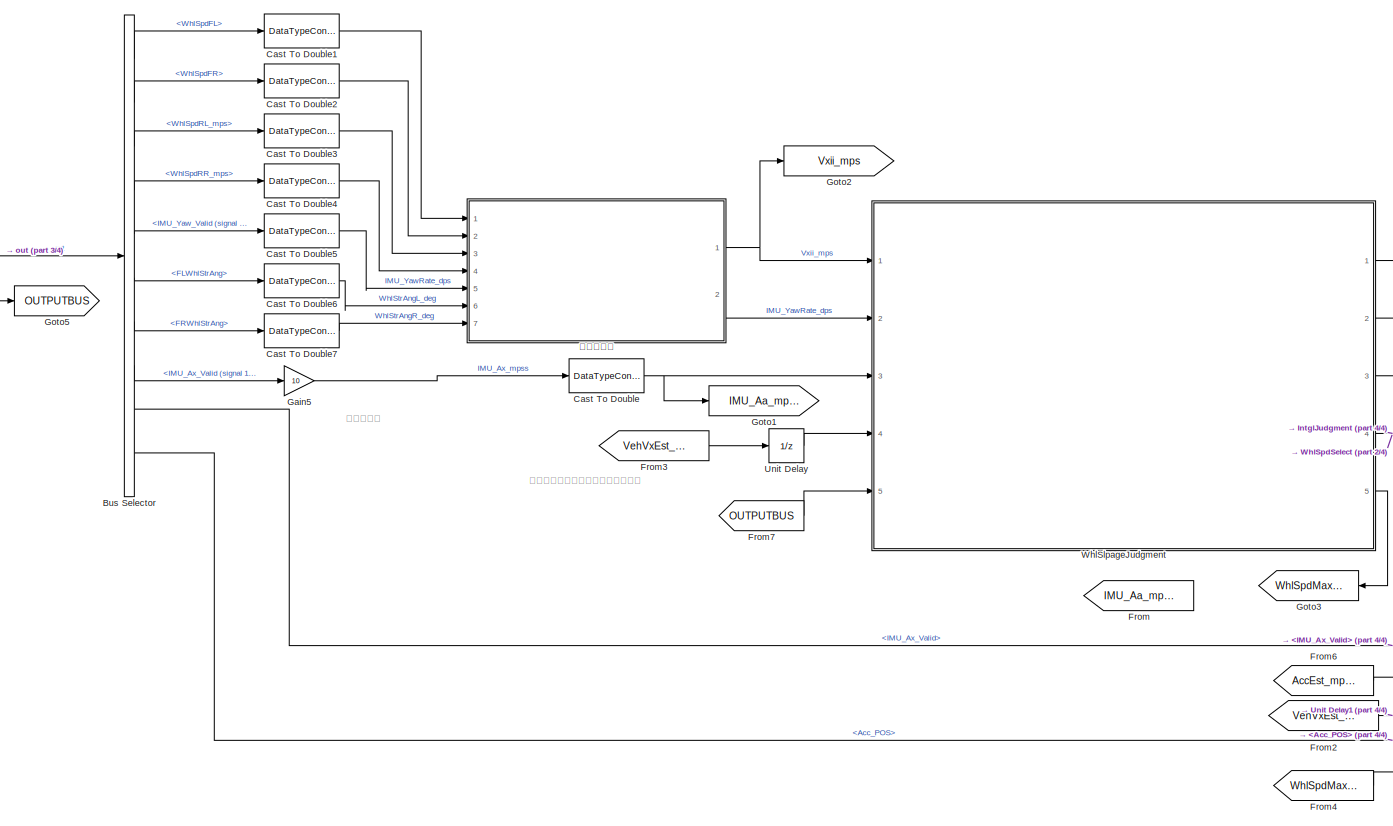
[diagram: root canvas - part 1/4, left side, full height]
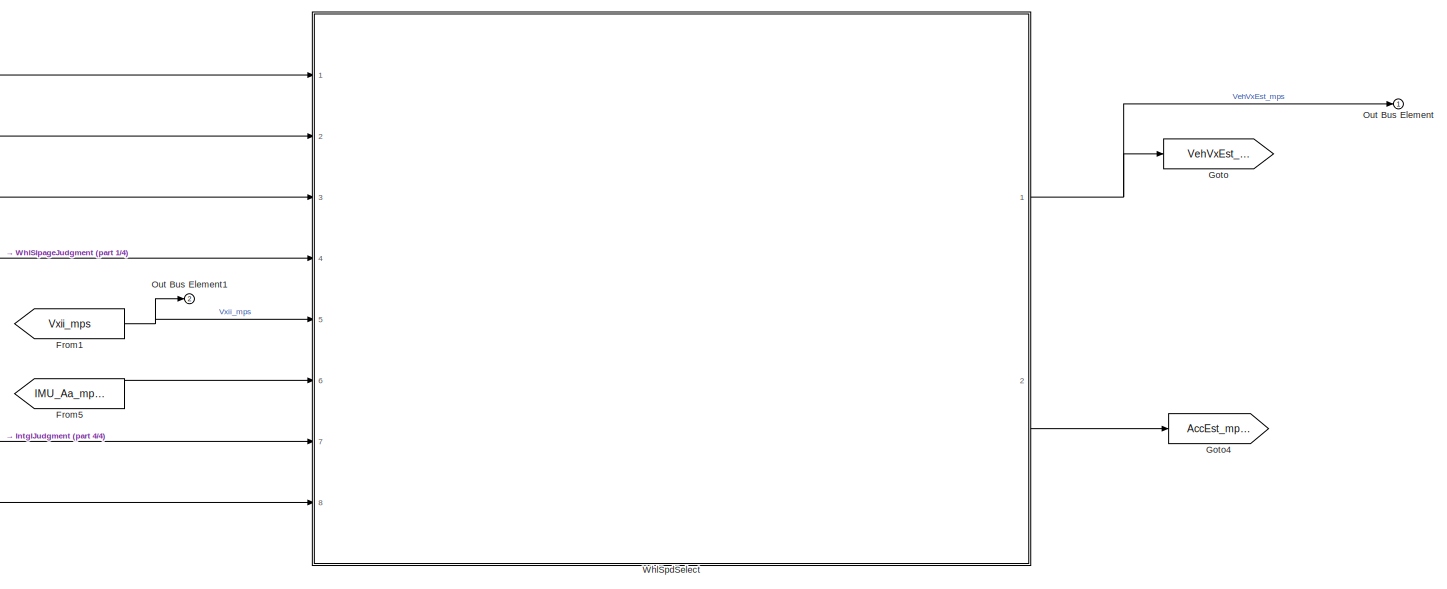
[diagram: root canvas - part 2/4, middle right region]
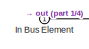
[diagram: root canvas - part 3/4, middle left region]
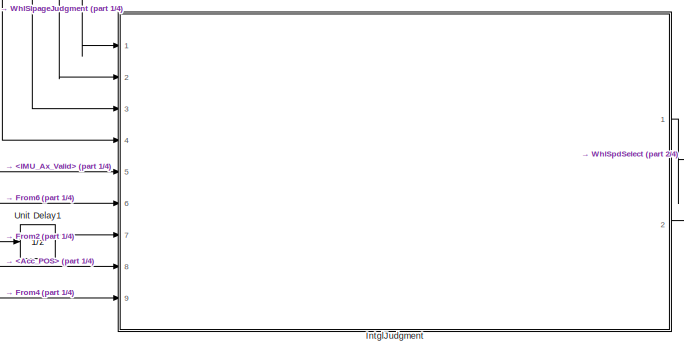
[diagram: root canvas - part 4/4, bottom center region]
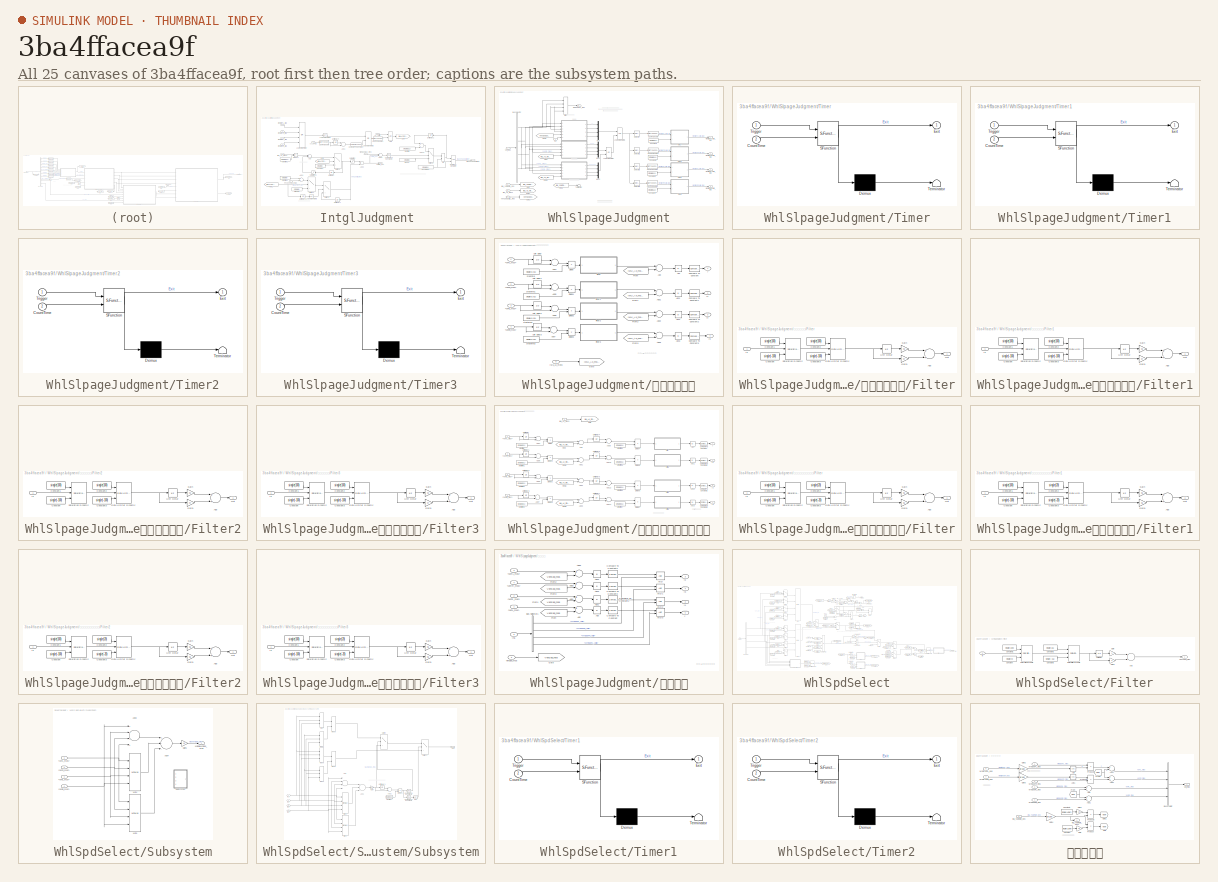
[diagram: thumbnail index - all 25 canvases of the model, root first then tree order]
MODEL slx_3ba4ffacea9f
KIND model
CONFIG AbsTol = auto
CONFIG EnableMultiTasking = off
CONFIG FixedStep = auto
CONFIG MaxStep = auto
CONFIG MinStep = auto
CONFIG RelTol = 1e-3
CONFIG SampleTimeConstraint = Unconstrained
CONFIG Solver = VariableStepAuto
CONFIG SolverName = VariableStepAuto
CONFIG StartTime = 0.0
CONFIG StopTime = 10.0
BLOCK [BusSelector] Bus Selector
  OutputAsBus = off
  OutputSignals = WhlSpdii_mps.WhlSpdFL,WhlSpdii_mps.WhlSpdFR,WhlSpdii_mps.WhlSpdRL_mps,WhlSpdii_mps.WhlSpdRR_mps,IMU_Processing.IMU_Yaw_Valid (signal 3),SWAS_Processing.FLWhlStrAng,SWAS_Processing.FRWhlStrAng,IMU_Processing.IMU_Ax_Valid (signal 1),BUS.IMU.IMU_Ax_Valid,AccBrkPedal_Processing.Acc_POS
  Ports = [1, 10]
BLOCK [DataTypeConversion] Cast To Double
  OutDataTypeStr = single
  RndMeth = Floor
  SaturateOnIntegerOverflow = off
BLOCK [DataTypeConversion] Cast To Double1
  OutDataTypeStr = single
  RndMeth = Floor
  SaturateOnIntegerOverflow = off
BLOCK [DataTypeConversion] Cast To Double2
  OutDataTypeStr = single
  RndMeth = Floor
  SaturateOnIntegerOverflow = off
BLOCK [DataTypeConversion] Cast To Double3
  OutDataTypeStr = single
  RndMeth = Floor
  SaturateOnIntegerOverflow = off
BLOCK [DataTypeConversion] Cast To Double4
  OutDataTypeStr = single
  RndMeth = Floor
  SaturateOnIntegerOverflow = off
BLOCK [DataTypeConversion] Cast To Double5
  OutDataTypeStr = single
  RndMeth = Floor
  SaturateOnIntegerOverflow = off
BLOCK [DataTypeConversion] Cast To Double6
  OutDataTypeStr = single
  RndMeth = Floor
  SaturateOnIntegerOverflow = off
BLOCK [DataTypeConversion] Cast To Double7
  OutDataTypeStr = single
  RndMeth = Floor
  SaturateOnIntegerOverflow = off
BLOCK [From] From
  Commented = on
  GotoTag = IMU_Aa_mpss
BLOCK [From] From1
  GotoTag = Vxii_mps
BLOCK [From] From2
  GotoTag = VehVxEst_mps
BLOCK [From] From3
  GotoTag = VehVxEst_mps
BLOCK [From] From4
  GotoTag = WhlSpdMax_mps
BLOCK [From] From5
  GotoTag = IMU_Aa_mpss
BLOCK [From] From6
  GotoTag = AccEst_mpss
BLOCK [From] From7
  GotoTag = OUTPUTBUS
BLOCK [Gain] Gain5
  Gain = 10
  OutDataTypeStr = Inherit: Inherit via internal rule
  ParamDataTypeStr = Inherit: Inherit via internal rule
  SaturateOnIntegerOverflow = off
BLOCK [Goto] Goto
  GotoTag = VehVxEst_mps
BLOCK [Goto] Goto1
  GotoTag = IMU_Aa_mpss
BLOCK [Goto] Goto2
  GotoTag = Vxii_mps
BLOCK [Goto] Goto3
  GotoTag = WhlSpdMax_mps
BLOCK [Goto] Goto4
  GotoTag = AccEst_mpss
BLOCK [Goto] Goto5
  GotoTag = OUTPUTBUS
BLOCK [Inport] In Bus Element
  IconDisplay = Port number
BLOCK [SubSystem] IntglJudgment 
  Ports = [9, 2]
  RequestExecContextInheritance = off
BLOCK [Logic] IntglJudgment /AND
  AllPortsSameDT = off
  OutDataTypeStr = boolean
  Ports = [2, 1]
BLOCK [Inport] IntglJudgment /Acc_POS
  IconDisplay = Port number
  Port = 8
BLOCK [Sum] IntglJudgment /Add
  InputSameDT = off
  OutDataTypeStr = Inherit: Inherit via internal rule
  Ports = [2, 1]
  SaturateOnIntegerOverflow = off
BLOCK [Sum] IntglJudgment /Add1
  InputSameDT = off
  Inputs = -+
  OutDataTypeStr = Inherit: Inherit via internal rule
  Ports = [2, 1]
  SaturateOnIntegerOverflow = off
BLOCK [Sum] IntglJudgment /Add10
  InputSameDT = off
  OutDataTypeStr = Inherit: Inherit via internal rule
  Ports = [2, 1]
  SaturateOnIntegerOverflow = off
BLOCK [Sum] IntglJudgment /Add2
  InputSameDT = off
  Inputs = +-
  OutDataTypeStr = Inherit: Inherit via internal rule
  Ports = [2, 1]
  SaturateOnIntegerOverflow = off
BLOCK [Sum] IntglJudgment /Add3
  InputSameDT = off
  OutDataTypeStr = Inherit: Inherit via internal rule
  Ports = [2, 1]
  SaturateOnIntegerOverflow = off
BLOCK [Sum] IntglJudgment /Add4
  InputSameDT = off
  OutDataTypeStr = Inherit: Inherit via internal rule
  Ports = [2, 1]
  SaturateOnIntegerOverflow = off
BLOCK [Inport] IntglJudgment /Ax_Valid
  IconDisplay = Port number
  Port = 5
BLOCK [DataTypeConversion] IntglJudgment /Cast To Double
  OutDataTypeStr = single
  RndMeth = Floor
  SaturateOnIntegerOverflow = off
BLOCK [DataTypeConversion] IntglJudgment /Cast To Double1
  OutDataTypeStr = boolean
  RndMeth = Floor
  SaturateOnIntegerOverflow = off
BLOCK [Reference] IntglJudgment /Compare To Constant  REF=simulink/Logic and Bit
Operations/Compare
To Constant
  Ports = [1, 1]
  SourceBlock = simulink/Logic and Bit\nOperations/Compare\nTo Constant
  SourceProductBaseCode = SL
  SourceProductName = Simulink
  SourceType = Compare To Constant
BLOCK [Reference] IntglJudgment /Compare To Constant1  REF=simulink/Logic and Bit
Operations/Compare
To Constant
  Ports = [1, 1]
  SourceBlock = simulink/Logic and Bit\nOperations/Compare\nTo Constant
  SourceProductBaseCode = SL
  SourceProductName = Simulink
  SourceType = Compare To Constant
BLOCK [Constant] IntglJudgment /Constant
  Value = single(0)
BLOCK [Inport] IntglJudgment /FFVehVxEst_mps
  IconDisplay = Port number
  Port = 7
BLOCK [From] IntglJudgment /From
  GotoTag = IMUAccIns_ACT
BLOCK [From] IntglJudgment /From1
  GotoTag = IMUAccIns_ACT
BLOCK [Goto] IntglJudgment /Goto
  GotoTag = IMUAccIns_ACT
BLOCK [Outport] IntglJudgment /IMUVehSpdEstiExit
  IconDisplay = Port number
  Port = 2
BLOCK [Inport] IntglJudgment /IMU_Ax_mpss
  IconDisplay = Port number
  Port = 6
BLOCK [Constant] IntglJudgment /InitZORE
  Value = single(0)
BLOCK [Logic] IntglJudgment /Logical Operator
  AllPortsSameDT = off
  Inputs = 4
  Operator = OR
  OutDataTypeStr = boolean
  Ports = [4, 1]
BLOCK [Logic] IntglJudgment /Logical Operator1
  AllPortsSameDT = off
  Operator = NOT
  OutDataTypeStr = boolean
  Ports = [1, 1]
BLOCK [Logic] IntglJudgment /Logical Operator2
  AllPortsSameDT = off
  Operator = OR
  OutDataTypeStr = boolean
  Ports = [2, 1]
BLOCK [Logic] IntglJudgment /Logical Operator3
  AllPortsSameDT = off
  Operator = NOT
  OutDataTypeStr = boolean
  Ports = [1, 1]
BLOCK [MinMax] IntglJudgment /Min
  InputSameDT = off
  Inputs = 2
  Ports = [2, 1]
  SaturateOnIntegerOverflow = off
BLOCK [Product] IntglJudgment /Product
  InputSameDT = off
  OutDataTypeStr = Inherit: Inherit via internal rule
  Ports = [2, 1]
  RndMeth = Floor
  SaturateOnIntegerOverflow = off
BLOCK [RelationalOperator] IntglJudgment /Relational Operator9
  InputSameDT = off
  OutDataTypeStr = boolean
  Ports = [2, 1]
  RndMeth = Simplest
BLOCK [Constant] IntglJudgment /Reset
  Value = single(0)
BLOCK [Constant] IntglJudgment /ResetDelay
  Value = single(0.1)
BLOCK [Saturate] IntglJudgment /Saturation
  InputPortMap = u0
  LowerLimit = -10
  Ports = [1, 1]
  UpperLimit = 200
BLOCK [Saturate] IntglJudgment /Saturation1
  InputPortMap = u0
  LowerLimit = -10
  Ports = [1, 1]
  UpperLimit = 200
BLOCK [Constant] IntglJudgment /Steptime
  Value = single(0.01)
BLOCK [Switch] IntglJudgment /Switch1
  Criteria = u2 ~= 0
  InputSameDT = off
  SaturateOnIntegerOverflow = off
BLOCK [Switch] IntglJudgment /Switch3
  Criteria = u2 ~= 0
  InputSameDT = off
  SaturateOnIntegerOverflow = off
BLOCK [Switch] IntglJudgment /Switch4
  Criteria = u2 ~= 0
  InputSameDT = off
  SaturateOnIntegerOverflow = off
BLOCK [Switch] IntglJudgment /Switch6
  Criteria = u2 ~= 0
  InputSameDT = off
  SaturateOnIntegerOverflow = off
BLOCK [UnitDelay] IntglJudgment /Unit Delay
  HasFrameUpgradeWarning = on
  SampleTime = -1
BLOCK [UnitDelay] IntglJudgment /Unit Delay1
  HasFrameUpgradeWarning = on
  SampleTime = -1
BLOCK [UnitDelay] IntglJudgment /Unit Delay2
  HasFrameUpgradeWarning = on
  SampleTime = -1
BLOCK [UnitDelay] IntglJudgment /Unit Delay3
  HasFrameUpgradeWarning = on
  SampleTime = -1
BLOCK [UnitDelay] IntglJudgment /Unit Delay4
  HasFrameUpgradeWarning = on
  SampleTime = -1
BLOCK [Outport] IntglJudgment /VxIMU_est
  IconDisplay = Port number
BLOCK [Inport] IntglJudgment /WhlSlipFL_flag
  IconDisplay = Port number
BLOCK [Inport] IntglJudgment /WhlSlipFR_flag
  IconDisplay = Port number
  Port = 2
BLOCK [Inport] IntglJudgment /WhlSlipRL_flag
  IconDisplay = Port number
  Port = 3
BLOCK [Inport] IntglJudgment /WhlSlipRR_flag
  IconDisplay = Port number
  Port = 4
BLOCK [Inport] IntglJudgment /WhlSpdMax_mps
  IconDisplay = Port number
  Port = 9
BLOCK [Constant] IntglJudgment /steptime1
  Value = single(0.01)
BLOCK [Constant] IntglJudgment /steptime2
  Value = single(0)
BLOCK [Outport] Out Bus Element
  IconDisplay = Port number
BLOCK [Outport] Out Bus Element1
  IconDisplay = Port number
  Port = 2
BLOCK [UnitDelay] Unit Delay
  HasFrameUpgradeWarning = on
  SampleTime = -1
BLOCK [UnitDelay] Unit Delay1
  HasFrameUpgradeWarning = on
  SampleTime = -1
BLOCK [SubSystem] WhlSlpageJudgment
  Ports = [5, 5]
  RequestExecContextInheritance = off
BLOCK [BusSelector] WhlSlpageJudgment/Bus Selector
  OutputAsBus = off
  OutputSignals = VxFL_mps,VxFR_mps,VxRL_mps,VxRR_mps
  Ports = [1, 4]
BLOCK [DataTypeConversion] WhlSlpageJudgment/Cast To Double
  OutDataTypeStr = boolean
  RndMeth = Floor
  SaturateOnIntegerOverflow = off
BLOCK [DataTypeConversion] WhlSlpageJudgment/Cast To Double1
  OutDataTypeStr = boolean
  RndMeth = Floor
  SaturateOnIntegerOverflow = off
BLOCK [DataTypeConversion] WhlSlpageJudgment/Cast To Double2
  OutDataTypeStr = boolean
  RndMeth = Floor
  SaturateOnIntegerOverflow = off
BLOCK [DataTypeConversion] WhlSlpageJudgment/Cast To Double3
  OutDataTypeStr = boolean
  RndMeth = Floor
  SaturateOnIntegerOverflow = off
BLOCK [Constant] WhlSlpageJudgment/Constant1
  Value = single(0.11)
BLOCK [Constant] WhlSlpageJudgment/Constant2
  Value = single(0.11)
BLOCK [Constant] WhlSlpageJudgment/Constant3
  Value = single(0.11)
BLOCK [Constant] WhlSlpageJudgment/Constant4
  Value = single(0.11)
BLOCK [From] WhlSlpageJudgment/From
  GotoTag = IMU_Aa_mpsss
BLOCK [From] WhlSlpageJudgment/From1
  GotoTag = VehSpdEstiZ1_mps
BLOCK [From] WhlSlpageJudgment/From2
  GotoTag = IMU_Aa_mpsss
BLOCK [From] WhlSlpageJudgment/From3
  GotoTag = IMU_YawRate_dps
BLOCK [Goto] WhlSlpageJudgment/Goto
  GotoTag = IMU_YawRate_dps
BLOCK [Goto] WhlSlpageJudgment/Goto1
  GotoTag = IMU_Aa_mpsss
BLOCK [Goto] WhlSlpageJudgment/Goto2
  GotoTag = VehSpdEstiZ1_mps
BLOCK [Inport] WhlSlpageJudgment/IMU_Aa_mpss
  IconDisplay = Port number
  Port = 3
BLOCK [Inport] WhlSlpageJudgment/IMU_YawRate_dps
  IconDisplay = Port number
  Port = 2
BLOCK [Inport] WhlSlpageJudgment/In5
  IconDisplay = Port number
  Port = 5
BLOCK [Logic] WhlSlpageJudgment/Logical Operator
  AllPortsSameDT = off
  Operator = OR
  OutDataTypeStr = boolean
  Ports = [2, 1]
BLOCK [Logic] WhlSlpageJudgment/Logical Operator1
  AllPortsSameDT = off
  OutDataTypeStr = boolean
  Ports = [2, 1]
BLOCK [MinMax] WhlSlpageJudgment/Min1
  Function = max
  InputSameDT = off
  Inputs = 4
  Ports = [4, 1]
  SaturateOnIntegerOverflow = off
BLOCK [Mux] WhlSlpageJudgment/Mux
  DisplayOption = bar
  Ports = [4, 1]
BLOCK [Mux] WhlSlpageJudgment/Mux1
  DisplayOption = bar
  Ports = [4, 1]
BLOCK [Mux] WhlSlpageJudgment/Mux2
  DisplayOption = bar
  Ports = [4, 1]
BLOCK [Selector] WhlSlpageJudgment/Selector
  IndexOptions = Index vector (dialog)
  Indices = [1]
  InputPortWidth = 4
  OutputSizes = 1
  Ports = [1, 1]
BLOCK [Selector] WhlSlpageJudgment/Selector1
  IndexOptions = Index vector (dialog)
  Indices = [2]
  InputPortWidth = 4
  OutputSizes = 1
  Ports = [1, 1]
BLOCK [Selector] WhlSlpageJudgment/Selector2
  IndexOptions = Index vector (dialog)
  Indices = [3]
  InputPortWidth = 4
  OutputSizes = 1
  Ports = [1, 1]
BLOCK [Selector] WhlSlpageJudgment/Selector3
  IndexOptions = Index vector (dialog)
  Indices = [4]
  InputPortWidth = 4
  OutputSizes = 1
  Ports = [1, 1]
BLOCK [Terminator] WhlSlpageJudgment/Terminator
BLOCK [SubSystem] WhlSlpageJudgment/Timer
  ErrorFcn = Stateflow.Translate.translate
  PermitHierarchicalResolution = ExplicitOnly
  Ports = [2, 1]
  RequestExecContextInheritance = off
  SFBlockType = Chart
  TreatAsAtomicUnit = on
BLOCK [Demux] WhlSlpageJudgment/Timer/ Demux 
  Outputs = 1
  Ports = [1, 1]
BLOCK [S-Function] WhlSlpageJudgment/Timer/ SFunction 
  EnableBusSupport = on
  FunctionName = sf_sfun
  Parameters = 0
  PortCounts = [2 2]
  Ports = [2, 2]
  SFcnIsStateOwnerBlock = off
  SFunctionDeploymentMode = off
  Tag = Stateflow S-Function 14
BLOCK [Terminator] WhlSlpageJudgment/Timer/ Terminator 
BLOCK [Inport] WhlSlpageJudgment/Timer/CountTime
  IconDisplay = Port number
  Port = 2
BLOCK [Outport] WhlSlpageJudgment/Timer/Exit
  IconDisplay = Port number
BLOCK [Inport] WhlSlpageJudgment/Timer/Trigger
  IconDisplay = Port number
BLOCK [SubSystem] WhlSlpageJudgment/Timer1
  ErrorFcn = Stateflow.Translate.translate
  PermitHierarchicalResolution = ExplicitOnly
  Ports = [2, 1]
  RequestExecContextInheritance = off
  SFBlockType = Chart
  TreatAsAtomicUnit = on
BLOCK [Demux] WhlSlpageJudgment/Timer1/ Demux 
  Outputs = 1
  Ports = [1, 1]
BLOCK [S-Function] WhlSlpageJudgment/Timer1/ SFunction 
  EnableBusSupport = on
  FunctionName = sf_sfun
  Parameters = 0
  PortCounts = [2 2]
  Ports = [2, 2]
  SFcnIsStateOwnerBlock = off
  SFunctionDeploymentMode = off
  Tag = Stateflow S-Function 17
BLOCK [Terminator] WhlSlpageJudgment/Timer1/ Terminator 
BLOCK [Inport] WhlSlpageJudgment/Timer1/CountTime
  IconDisplay = Port number
  Port = 2
BLOCK [Outport] WhlSlpageJudgment/Timer1/Exit
  IconDisplay = Port number
BLOCK [Inport] WhlSlpageJudgment/Timer1/Trigger
  IconDisplay = Port number
BLOCK [SubSystem] WhlSlpageJudgment/Timer2
  ErrorFcn = Stateflow.Translate.translate
  PermitHierarchicalResolution = ExplicitOnly
  Ports = [2, 1]
  RequestExecContextInheritance = off
  SFBlockType = Chart
  TreatAsAtomicUnit = on
BLOCK [Demux] WhlSlpageJudgment/Timer2/ Demux 
  Outputs = 1
  Ports = [1, 1]
BLOCK [S-Function] WhlSlpageJudgment/Timer2/ SFunction 
  EnableBusSupport = on
  FunctionName = sf_sfun
  Parameters = 0
  PortCounts = [2 2]
  Ports = [2, 2]
  SFcnIsStateOwnerBlock = off
  SFunctionDeploymentMode = off
  Tag = Stateflow S-Function 18
BLOCK [Terminator] WhlSlpageJudgment/Timer2/ Terminator 
BLOCK [Inport] WhlSlpageJudgment/Timer2/CountTime
  IconDisplay = Port number
  Port = 2
BLOCK [Outport] WhlSlpageJudgment/Timer2/Exit
  IconDisplay = Port number
BLOCK [Inport] WhlSlpageJudgment/Timer2/Trigger
  IconDisplay = Port number
BLOCK [SubSystem] WhlSlpageJudgment/Timer3
  ErrorFcn = Stateflow.Translate.translate
  PermitHierarchicalResolution = ExplicitOnly
  Ports = [2, 1]
  RequestExecContextInheritance = off
  SFBlockType = Chart
  TreatAsAtomicUnit = on
BLOCK [Demux] WhlSlpageJudgment/Timer3/ Demux 
  Outputs = 1
  Ports = [1, 1]
BLOCK [S-Function] WhlSlpageJudgment/Timer3/ SFunction 
  EnableBusSupport = on
  FunctionName = sf_sfun
  Parameters = 0
  PortCounts = [2 2]
  Ports = [2, 2]
  SFcnIsStateOwnerBlock = off
  SFunctionDeploymentMode = off
  Tag = Stateflow S-Function 19
BLOCK [Terminator] WhlSlpageJudgment/Timer3/ Terminator 
BLOCK [Inport] WhlSlpageJudgment/Timer3/CountTime
  IconDisplay = Port number
  Port = 2
BLOCK [Outport] WhlSlpageJudgment/Timer3/Exit
  IconDisplay = Port number
BLOCK [Inport] WhlSlpageJudgment/Timer3/Trigger
  IconDisplay = Port number
BLOCK [Inport] WhlSlpageJudgment/VehSpdEstiZ1_mps
  IconDisplay = Port number
  Port = 4
BLOCK [Inport] WhlSlpageJudgment/Vxii_mps
  IconDisplay = Port number
BLOCK [Outport] WhlSlpageJudgment/WhlSlipFLValid_flag
  IconDisplay = Port number
BLOCK [Outport] WhlSlpageJudgment/WhlSlipFRValid_flag
  IconDisplay = Port number
  Port = 2
BLOCK [Outport] WhlSlpageJudgment/WhlSlipRLValid_flag
  IconDisplay = Port number
  Port = 3
BLOCK [Outport] WhlSlpageJudgment/WhlSlipRRValid_flag
  IconDisplay = Port number
  Port = 4
BLOCK [Outport] WhlSlpageJudgment/WhlSpdMax_mps
  IconDisplay = Port number
  Port = 5
BLOCK [SubSystem] WhlSlpageJudgment/加速度差判断
  Ports = [5, 4]
  RequestExecContextInheritance = off
BLOCK [Inport] WhlSlpageJudgment/加速度差判断/<VxFL_mps>
  IconDisplay = Port number
BLOCK [Inport] WhlSlpageJudgment/加速度差判断/<VxFR_mps>
  IconDisplay = Port number
  Port = 2
BLOCK [Inport] WhlSlpageJudgment/加速度差判断/<VxRL_mps>
  IconDisplay = Port number
  Port = 3
BLOCK [Inport] WhlSlpageJudgment/加速度差判断/<VxRR_mps>
  IconDisplay = Port number
  Port = 4
BLOCK [Abs] WhlSlpageJudgment/加速度差判断/Abs
  SaturateOnIntegerOverflow = off
BLOCK [Abs] WhlSlpageJudgment/加速度差判断/Abs1
  SaturateOnIntegerOverflow = off
BLOCK [Abs] WhlSlpageJudgment/加速度差判断/Abs2
  SaturateOnIntegerOverflow = off
BLOCK [Abs] WhlSlpageJudgment/加速度差判断/Abs3
  SaturateOnIntegerOverflow = off
BLOCK [Sum] WhlSlpageJudgment/加速度差判断/Add
  InputSameDT = off
  Inputs = +-
  OutDataTypeStr = Inherit: Inherit via internal rule
  Ports = [2, 1]
  SaturateOnIntegerOverflow = off
BLOCK [Sum] WhlSlpageJudgment/加速度差判断/Add1
  InputSameDT = off
  Inputs = +-
  OutDataTypeStr = Inherit: Inherit via internal rule
  Ports = [2, 1]
  SaturateOnIntegerOverflow = off
BLOCK [Sum] WhlSlpageJudgment/加速度差判断/Add2
  InputSameDT = off
  Inputs = +-
  OutDataTypeStr = Inherit: Inherit via internal rule
  Ports = [2, 1]
  SaturateOnIntegerOverflow = off
BLOCK [Sum] WhlSlpageJudgment/加速度差判断/Add3
  InputSameDT = off
  Inputs = +-
  OutDataTypeStr = Inherit: Inherit via internal rule
  Ports = [2, 1]
  SaturateOnIntegerOverflow = off
BLOCK [Sum] WhlSlpageJudgment/加速度差判断/Add4
  InputSameDT = off
  Inputs = -+
  OutDataTypeStr = Inherit: Inherit via internal rule
  Ports = [2, 1]
  SaturateOnIntegerOverflow = off
BLOCK [Sum] WhlSlpageJudgment/加速度差判断/Add5
  InputSameDT = off
  Inputs = -+
  OutDataTypeStr = Inherit: Inherit via internal rule
  Ports = [2, 1]
  SaturateOnIntegerOverflow = off
BLOCK [Sum] WhlSlpageJudgment/加速度差判断/Add6
  InputSameDT = off
  Inputs = -+
  OutDataTypeStr = Inherit: Inherit via internal rule
  Ports = [2, 1]
  SaturateOnIntegerOverflow = off
BLOCK [Sum] WhlSlpageJudgment/加速度差判断/Add7
  InputSameDT = off
  Inputs = -+
  OutDataTypeStr = Inherit: Inherit via internal rule
  Ports = [2, 1]
  SaturateOnIntegerOverflow = off
BLOCK [Reference] WhlSlpageJudgment/加速度差判断/Compare To Constant  REF=simulink/Logic and Bit
Operations/Compare
To Constant
  Ports = [1, 1]
  SourceBlock = simulink/Logic and Bit\nOperations/Compare\nTo Constant
  SourceProductBaseCode = SL
  SourceProductName = Simulink
  SourceType = Compare To Constant
BLOCK [Reference] WhlSlpageJudgment/加速度差判断/Compare To Constant1  REF=simulink/Logic and Bit
Operations/Compare
To Constant
  Ports = [1, 1]
  SourceBlock = simulink/Logic and Bit\nOperations/Compare\nTo Constant
  SourceProductBaseCode = SL
  SourceProductName = Simulink
  SourceType = Compare To Constant
BLOCK [Reference] WhlSlpageJudgment/加速度差判断/Compare To Constant2  REF=simulink/Logic and Bit
Operations/Compare
To Constant
  Ports = [1, 1]
  SourceBlock = simulink/Logic and Bit\nOperations/Compare\nTo Constant
  SourceProductBaseCode = SL
  SourceProductName = Simulink
  SourceType = Compare To Constant
BLOCK [Reference] WhlSlpageJudgment/加速度差判断/Compare To Constant3  REF=simulink/Logic and Bit
Operations/Compare
To Constant
  Ports = [1, 1]
  SourceBlock = simulink/Logic and Bit\nOperations/Compare\nTo Constant
  SourceProductBaseCode = SL
  SourceProductName = Simulink
  SourceType = Compare To Constant
BLOCK [Product] WhlSlpageJudgment/加速度差判断/Divide
  InputSameDT = off
  Inputs = */
  OutDataTypeStr = Inherit: Inherit via internal rule
  Ports = [2, 1]
  RndMeth = Floor
  SaturateOnIntegerOverflow = off
BLOCK [Product] WhlSlpageJudgment/加速度差判断/Divide1
  InputSameDT = off
  Inputs = */
  OutDataTypeStr = Inherit: Inherit via internal rule
  Ports = [2, 1]
  RndMeth = Floor
  SaturateOnIntegerOverflow = off
BLOCK [Product] WhlSlpageJudgment/加速度差判断/Divide2
  InputSameDT = off
  Inputs = */
  OutDataTypeStr = Inherit: Inherit via internal rule
  Ports = [2, 1]
  RndMeth = Floor
  SaturateOnIntegerOverflow = off
BLOCK [Product] WhlSlpageJudgment/加速度差判断/Divide3
  InputSameDT = off
  Inputs = */
  OutDataTypeStr = Inherit: Inherit via internal rule
  Ports = [2, 1]
  RndMeth = Floor
  SaturateOnIntegerOverflow = off
BLOCK [SubSystem] WhlSlpageJudgment/加速度差判断/Filter
  Ports = [1, 1]
  RequestExecContextInheritance = off
BLOCK [Sum] WhlSlpageJudgment/加速度差判断/Filter/Add
  InputSameDT = off
  OutDataTypeStr = Inherit: Inherit via internal rule
  Ports = [2, 1]
  SaturateOnIntegerOverflow = off
BLOCK [Constant] WhlSlpageJudgment/加速度差判断/Filter/Constant
  Value = single(-100)
BLOCK [Constant] WhlSlpageJudgment/加速度差判断/Filter/Constant1
  Value = single(100)
BLOCK [Constant] WhlSlpageJudgment/加速度差判断/Filter/Constant2
  Value = single(100)
BLOCK [Constant] WhlSlpageJudgment/加速度差判断/Filter/Constant3
  Value = single(-100)
BLOCK [Gain] WhlSlpageJudgment/加速度差判断/Filter/Gain
  Gain = 0.3
  OutDataTypeStr = Inherit: Inherit via internal rule
  ParamDataTypeStr = Inherit: Inherit via internal rule
  SaturateOnIntegerOverflow = off
BLOCK [Gain] WhlSlpageJudgment/加速度差判断/Filter/Gain1
  Gain = 0.7
  OutDataTypeStr = Inherit: Inherit via internal rule
  ParamDataTypeStr = Inherit: Inherit via internal rule
  SaturateOnIntegerOverflow = off
BLOCK [Inport] WhlSlpageJudgment/加速度差判断/Filter/In
  IconDisplay = Port number
BLOCK [Outport] WhlSlpageJudgment/加速度差判断/Filter/Out
  IconDisplay = Port number
BLOCK [Reference] WhlSlpageJudgment/加速度差判断/Filter/Rate Limiter Dynamic  REF=simulink/Discontinuities/Rate Limiter
Dynamic
  Ports = [3, 1]
  SourceBlock = simulink/Discontinuities/Rate Limiter\nDynamic
  SourceProductBaseCode = SL
  SourceProductName = Simulink
  SourceType = Rate Limiter Dynamic
BLOCK [Reference] WhlSlpageJudgment/加速度差判断/Filter/Saturation Dynamic  REF=simulink/Discontinuities/Saturation
Dynamic
  Ports = [3, 1]
  SourceBlock = simulink/Discontinuities/Saturation\nDynamic
  SourceProductBaseCode = SL
  SourceProductName = Simulink
  SourceType = Saturation Dynamic
BLOCK [UnitDelay] WhlSlpageJudgment/加速度差判断/Filter/Unit Delay
  HasFrameUpgradeWarning = on
  SampleTime = -1
BLOCK [SubSystem] WhlSlpageJudgment/加速度差判断/Filter1
  Ports = [1, 1]
  RequestExecContextInheritance = off
BLOCK [Sum] WhlSlpageJudgment/加速度差判断/Filter1/Add
  InputSameDT = off
  OutDataTypeStr = Inherit: Inherit via internal rule
  Ports = [2, 1]
  SaturateOnIntegerOverflow = off
BLOCK [Constant] WhlSlpageJudgment/加速度差判断/Filter1/Constant
  Value = single(-100)
BLOCK [Constant] WhlSlpageJudgment/加速度差判断/Filter1/Constant1
  Value = single(100)
BLOCK [Constant] WhlSlpageJudgment/加速度差判断/Filter1/Constant2
  Value = single(100)
BLOCK [Constant] WhlSlpageJudgment/加速度差判断/Filter1/Constant3
  Value = single(-100)
BLOCK [Gain] WhlSlpageJudgment/加速度差判断/Filter1/Gain
  Gain = 0.3
  OutDataTypeStr = Inherit: Inherit via internal rule
  ParamDataTypeStr = Inherit: Inherit via internal rule
  SaturateOnIntegerOverflow = off
BLOCK [Gain] WhlSlpageJudgment/加速度差判断/Filter1/Gain1
  Gain = 0.7
  OutDataTypeStr = Inherit: Inherit via internal rule
  ParamDataTypeStr = Inherit: Inherit via internal rule
  SaturateOnIntegerOverflow = off
BLOCK [Inport] WhlSlpageJudgment/加速度差判断/Filter1/In
  IconDisplay = Port number
BLOCK [Outport] WhlSlpageJudgment/加速度差判断/Filter1/Out
  IconDisplay = Port number
BLOCK [Reference] WhlSlpageJudgment/加速度差判断/Filter1/Rate Limiter Dynamic  REF=simulink/Discontinuities/Rate Limiter
Dynamic
  Ports = [3, 1]
  SourceBlock = simulink/Discontinuities/Rate Limiter\nDynamic
  SourceProductBaseCode = SL
  SourceProductName = Simulink
  SourceType = Rate Limiter Dynamic
BLOCK [Reference] WhlSlpageJudgment/加速度差判断/Filter1/Saturation Dynamic  REF=simulink/Discontinuities/Saturation
Dynamic
  Ports = [3, 1]
  SourceBlock = simulink/Discontinuities/Saturation\nDynamic
  SourceProductBaseCode = SL
  SourceProductName = Simulink
  SourceType = Saturation Dynamic
BLOCK [UnitDelay] WhlSlpageJudgment/加速度差判断/Filter1/Unit Delay
  HasFrameUpgradeWarning = on
  SampleTime = -1
BLOCK [SubSystem] WhlSlpageJudgment/加速度差判断/Filter2
  Ports = [1, 1]
  RequestExecContextInheritance = off
BLOCK [Sum] WhlSlpageJudgment/加速度差判断/Filter2/Add
  InputSameDT = off
  OutDataTypeStr = Inherit: Inherit via internal rule
  Ports = [2, 1]
  SaturateOnIntegerOverflow = off
BLOCK [Constant] WhlSlpageJudgment/加速度差判断/Filter2/Constant
  Value = single(-100)
BLOCK [Constant] WhlSlpageJudgment/加速度差判断/Filter2/Constant1
  Value = single(100)
BLOCK [Constant] WhlSlpageJudgment/加速度差判断/Filter2/Constant2
  Value = single(100)
BLOCK [Constant] WhlSlpageJudgment/加速度差判断/Filter2/Constant3
  Value = single(-100)
BLOCK [Gain] WhlSlpageJudgment/加速度差判断/Filter2/Gain
  Gain = 0.3
  OutDataTypeStr = Inherit: Inherit via internal rule
  ParamDataTypeStr = Inherit: Inherit via internal rule
  SaturateOnIntegerOverflow = off
BLOCK [Gain] WhlSlpageJudgment/加速度差判断/Filter2/Gain1
  Gain = 0.7
  OutDataTypeStr = Inherit: Inherit via internal rule
  ParamDataTypeStr = Inherit: Inherit via internal rule
  SaturateOnIntegerOverflow = off
BLOCK [Inport] WhlSlpageJudgment/加速度差判断/Filter2/In
  IconDisplay = Port number
BLOCK [Outport] WhlSlpageJudgment/加速度差判断/Filter2/Out
  IconDisplay = Port number
BLOCK [Reference] WhlSlpageJudgment/加速度差判断/Filter2/Rate Limiter Dynamic  REF=simulink/Discontinuities/Rate Limiter
Dynamic
  Ports = [3, 1]
  SourceBlock = simulink/Discontinuities/Rate Limiter\nDynamic
  SourceProductBaseCode = SL
  SourceProductName = Simulink
  SourceType = Rate Limiter Dynamic
BLOCK [Reference] WhlSlpageJudgment/加速度差判断/Filter2/Saturation Dynamic  REF=simulink/Discontinuities/Saturation
Dynamic
  Ports = [3, 1]
  SourceBlock = simulink/Discontinuities/Saturation\nDynamic
  SourceProductBaseCode = SL
  SourceProductName = Simulink
  SourceType = Saturation Dynamic
BLOCK [UnitDelay] WhlSlpageJudgment/加速度差判断/Filter2/Unit Delay
  HasFrameUpgradeWarning = on
  SampleTime = -1
BLOCK [SubSystem] WhlSlpageJudgment/加速度差判断/Filter3
  Ports = [1, 1]
  RequestExecContextInheritance = off
BLOCK [Sum] WhlSlpageJudgment/加速度差判断/Filter3/Add
  InputSameDT = off
  OutDataTypeStr = Inherit: Inherit via internal rule
  Ports = [2, 1]
  SaturateOnIntegerOverflow = off
BLOCK [Constant] WhlSlpageJudgment/加速度差判断/Filter3/Constant
  Value = single(-100)
BLOCK [Constant] WhlSlpageJudgment/加速度差判断/Filter3/Constant1
  Value = single(100)
BLOCK [Constant] WhlSlpageJudgment/加速度差判断/Filter3/Constant2
  Value = single(100)
BLOCK [Constant] WhlSlpageJudgment/加速度差判断/Filter3/Constant3
  Value = single(-100)
BLOCK [Gain] WhlSlpageJudgment/加速度差判断/Filter3/Gain
  Gain = 0.3
  OutDataTypeStr = Inherit: Inherit via internal rule
  ParamDataTypeStr = Inherit: Inherit via internal rule
  SaturateOnIntegerOverflow = off
BLOCK [Gain] WhlSlpageJudgment/加速度差判断/Filter3/Gain1
  Gain = 0.7
  OutDataTypeStr = Inherit: Inherit via internal rule
  ParamDataTypeStr = Inherit: Inherit via internal rule
  SaturateOnIntegerOverflow = off
BLOCK [Inport] WhlSlpageJudgment/加速度差判断/Filter3/In
  IconDisplay = Port number
BLOCK [Outport] WhlSlpageJudgment/加速度差判断/Filter3/Out
  IconDisplay = Port number
BLOCK [Reference] WhlSlpageJudgment/加速度差判断/Filter3/Rate Limiter Dynamic  REF=simulink/Discontinuities/Rate Limiter
Dynamic
  Ports = [3, 1]
  SourceBlock = simulink/Discontinuities/Rate Limiter\nDynamic
  SourceProductBaseCode = SL
  SourceProductName = Simulink
  SourceType = Rate Limiter Dynamic
BLOCK [Reference] WhlSlpageJudgment/加速度差判断/Filter3/Saturation Dynamic  REF=simulink/Discontinuities/Saturation
Dynamic
  Ports = [3, 1]
  SourceBlock = simulink/Discontinuities/Saturation\nDynamic
  SourceProductBaseCode = SL
  SourceProductName = Simulink
  SourceType = Saturation Dynamic
BLOCK [UnitDelay] WhlSlpageJudgment/加速度差判断/Filter3/Unit Delay
  HasFrameUpgradeWarning = on
  SampleTime = -1
BLOCK [From] WhlSlpageJudgment/加速度差判断/From
  GotoTag = IMU_Ax_mpss
BLOCK [From] WhlSlpageJudgment/加速度差判断/From1
  GotoTag = IMU_Ax_mpss
BLOCK [From] WhlSlpageJudgment/加速度差判断/From2
  GotoTag = IMU_Ax_mpss
BLOCK [From] WhlSlpageJudgment/加速度差判断/From3
  GotoTag = IMU_Ax_mpss
BLOCK [Goto] WhlSlpageJudgment/加速度差判断/Goto
  GotoTag = IMU_Ax_mpss
BLOCK [Inport] WhlSlpageJudgment/加速度差判断/IMU_Ax_mpss
  IconDisplay = Port number
  Port = 5
BLOCK [UnitDelay] WhlSlpageJudgment/加速度差判断/Unit Delay
  HasFrameUpgradeWarning = on
  SampleTime = -1
BLOCK [UnitDelay] WhlSlpageJudgment/加速度差判断/Unit Delay1
  HasFrameUpgradeWarning = on
  SampleTime = -1
BLOCK [UnitDelay] WhlSlpageJudgment/加速度差判断/Unit Delay2
  HasFrameUpgradeWarning = on
  SampleTime = -1
BLOCK [UnitDelay] WhlSlpageJudgment/加速度差判断/Unit Delay3
  HasFrameUpgradeWarning = on
  SampleTime = -1
BLOCK [Constant] WhlSlpageJudgment/加速度差判断/steptime
  Value = single(0.01)
BLOCK [Constant] WhlSlpageJudgment/加速度差判断/steptime1
  Value = single(0.01)
BLOCK [Constant] WhlSlpageJudgment/加速度差判断/steptime2
  Value = single(0.01)
BLOCK [Constant] WhlSlpageJudgment/加速度差判断/steptime3
  Value = single(0.01)
BLOCK [Outport] WhlSlpageJudgment/加速度差判断/y
  IconDisplay = Port number
BLOCK [Outport] WhlSlpageJudgment/加速度差判断/y1
  IconDisplay = Port number
  Port = 2
BLOCK [Outport] WhlSlpageJudgment/加速度差判断/y2
  IconDisplay = Port number
  Port = 3
BLOCK [Outport] WhlSlpageJudgment/加速度差判断/y3
  IconDisplay = Port number
  Port = 4
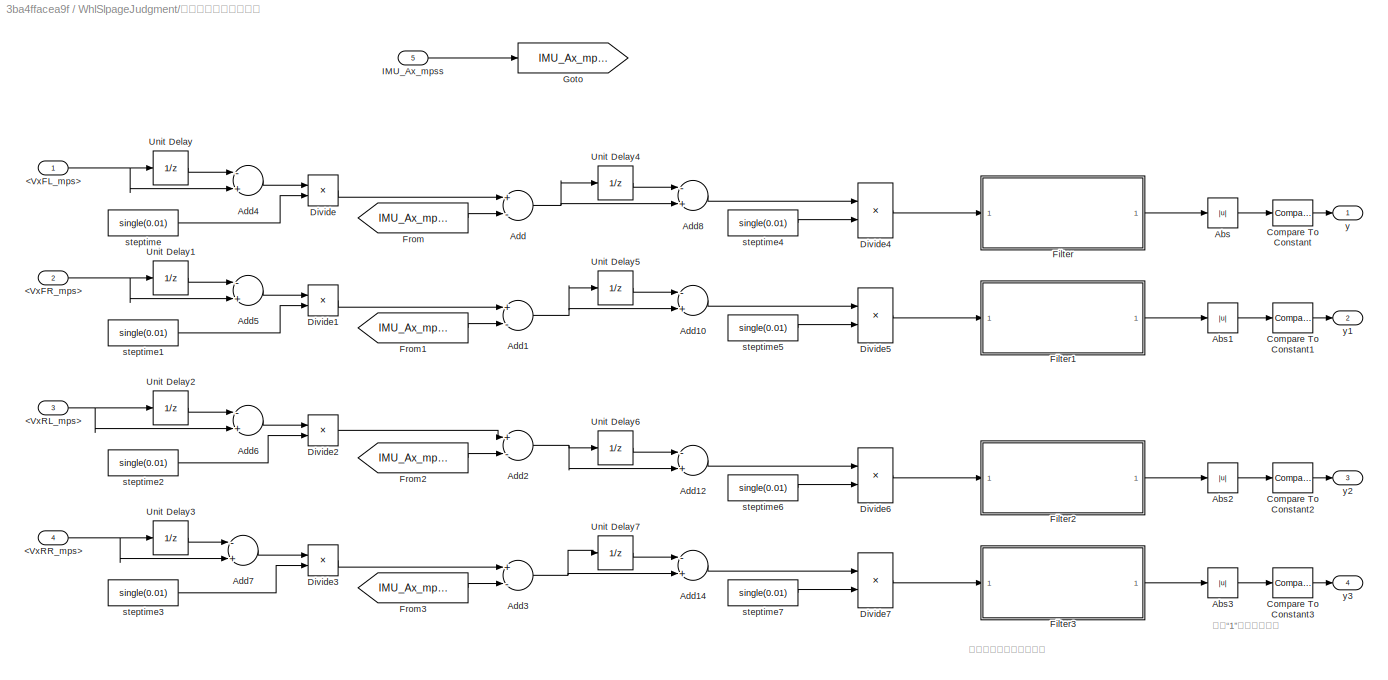
BLOCK [SubSystem] WhlSlpageJudgment/加速度差的微分的判断
  Ports = [5, 4]
  RequestExecContextInheritance = off
BLOCK [Inport] WhlSlpageJudgment/加速度差的微分的判断/<VxFL_mps>
  IconDisplay = Port number
BLOCK [Inport] WhlSlpageJudgment/加速度差的微分的判断/<VxFR_mps>
  IconDisplay = Port number
  Port = 2
BLOCK [Inport] WhlSlpageJudgment/加速度差的微分的判断/<VxRL_mps>
  IconDisplay = Port number
  Port = 3
BLOCK [Inport] WhlSlpageJudgment/加速度差的微分的判断/<VxRR_mps>
  IconDisplay = Port number
  Port = 4
BLOCK [Abs] WhlSlpageJudgment/加速度差的微分的判断/Abs
  SaturateOnIntegerOverflow = off
BLOCK [Abs] WhlSlpageJudgment/加速度差的微分的判断/Abs1
  SaturateOnIntegerOverflow = off
BLOCK [Abs] WhlSlpageJudgment/加速度差的微分的判断/Abs2
  SaturateOnIntegerOverflow = off
BLOCK [Abs] WhlSlpageJudgment/加速度差的微分的判断/Abs3
  SaturateOnIntegerOverflow = off
BLOCK [Sum] WhlSlpageJudgment/加速度差的微分的判断/Add
  InputSameDT = off
  Inputs = +-
  OutDataTypeStr = Inherit: Inherit via internal rule
  Ports = [2, 1]
  SaturateOnIntegerOverflow = off
BLOCK [Sum] WhlSlpageJudgment/加速度差的微分的判断/Add1
  InputSameDT = off
  Inputs = +-
  OutDataTypeStr = Inherit: Inherit via internal rule
  Ports = [2, 1]
  SaturateOnIntegerOverflow = off
BLOCK [Sum] WhlSlpageJudgment/加速度差的微分的判断/Add10
  InputSameDT = off
  Inputs = -+
  OutDataTypeStr = Inherit: Inherit via internal rule
  Ports = [2, 1]
  SaturateOnIntegerOverflow = off
BLOCK [Sum] WhlSlpageJudgment/加速度差的微分的判断/Add12
  InputSameDT = off
  Inputs = -+
  OutDataTypeStr = Inherit: Inherit via internal rule
  Ports = [2, 1]
  SaturateOnIntegerOverflow = off
BLOCK [Sum] WhlSlpageJudgment/加速度差的微分的判断/Add14
  InputSameDT = off
  Inputs = -+
  OutDataTypeStr = Inherit: Inherit via internal rule
  Ports = [2, 1]
  SaturateOnIntegerOverflow = off
BLOCK [Sum] WhlSlpageJudgment/加速度差的微分的判断/Add2
  InputSameDT = off
  Inputs = +-
  OutDataTypeStr = Inherit: Inherit via internal rule
  Ports = [2, 1]
  SaturateOnIntegerOverflow = off
BLOCK [Sum] WhlSlpageJudgment/加速度差的微分的判断/Add3
  InputSameDT = off
  Inputs = +-
  OutDataTypeStr = Inherit: Inherit via internal rule
  Ports = [2, 1]
  SaturateOnIntegerOverflow = off
BLOCK [Sum] WhlSlpageJudgment/加速度差的微分的判断/Add4
  InputSameDT = off
  Inputs = -+
  OutDataTypeStr = Inherit: Inherit via internal rule
  Ports = [2, 1]
  SaturateOnIntegerOverflow = off
BLOCK [Sum] WhlSlpageJudgment/加速度差的微分的判断/Add5
  InputSameDT = off
  Inputs = -+
  OutDataTypeStr = Inherit: Inherit via internal rule
  Ports = [2, 1]
  SaturateOnIntegerOverflow = off
BLOCK [Sum] WhlSlpageJudgment/加速度差的微分的判断/Add6
  InputSameDT = off
  Inputs = -+
  OutDataTypeStr = Inherit: Inherit via internal rule
  Ports = [2, 1]
  SaturateOnIntegerOverflow = off
BLOCK [Sum] WhlSlpageJudgment/加速度差的微分的判断/Add7
  InputSameDT = off
  Inputs = -+
  OutDataTypeStr = Inherit: Inherit via internal rule
  Ports = [2, 1]
  SaturateOnIntegerOverflow = off
BLOCK [Sum] WhlSlpageJudgment/加速度差的微分的判断/Add8
  InputSameDT = off
  Inputs = -+
  OutDataTypeStr = Inherit: Inherit via internal rule
  Ports = [2, 1]
  SaturateOnIntegerOverflow = off
BLOCK [Reference] WhlSlpageJudgment/加速度差的微分的判断/Compare To Constant  REF=simulink/Logic and Bit
Operations/Compare
To Constant
  Ports = [1, 1]
  SourceBlock = simulink/Logic and Bit\nOperations/Compare\nTo Constant
  SourceProductBaseCode = SL
  SourceProductName = Simulink
  SourceType = Compare To Constant
BLOCK [Reference] WhlSlpageJudgment/加速度差的微分的判断/Compare To Constant1  REF=simulink/Logic and Bit
Operations/Compare
To Constant
  Ports = [1, 1]
  SourceBlock = simulink/Logic and Bit\nOperations/Compare\nTo Constant
  SourceProductBaseCode = SL
  SourceProductName = Simulink
  SourceType = Compare To Constant
BLOCK [Reference] WhlSlpageJudgment/加速度差的微分的判断/Compare To Constant2  REF=simulink/Logic and Bit
Operations/Compare
To Constant
  Ports = [1, 1]
  SourceBlock = simulink/Logic and Bit\nOperations/Compare\nTo Constant
  SourceProductBaseCode = SL
  SourceProductName = Simulink
  SourceType = Compare To Constant
BLOCK [Reference] WhlSlpageJudgment/加速度差的微分的判断/Compare To Constant3  REF=simulink/Logic and Bit
Operations/Compare
To Constant
  Ports = [1, 1]
  SourceBlock = simulink/Logic and Bit\nOperations/Compare\nTo Constant
  SourceProductBaseCode = SL
  SourceProductName = Simulink
  SourceType = Compare To Constant
BLOCK [Product] WhlSlpageJudgment/加速度差的微分的判断/Divide
  InputSameDT = off
  Inputs = */
  OutDataTypeStr = Inherit: Inherit via internal rule
  Ports = [2, 1]
  RndMeth = Floor
  SaturateOnIntegerOverflow = off
BLOCK [Product] WhlSlpageJudgment/加速度差的微分的判断/Divide1
  InputSameDT = off
  Inputs = */
  OutDataTypeStr = Inherit: Inherit via internal rule
  Ports = [2, 1]
  RndMeth = Floor
  SaturateOnIntegerOverflow = off
BLOCK [Product] WhlSlpageJudgment/加速度差的微分的判断/Divide2
  InputSameDT = off
  Inputs = */
  OutDataTypeStr = Inherit: Inherit via internal rule
  Ports = [2, 1]
  RndMeth = Floor
  SaturateOnIntegerOverflow = off
BLOCK [Product] WhlSlpageJudgment/加速度差的微分的判断/Divide3
  InputSameDT = off
  Inputs = */
  OutDataTypeStr = Inherit: Inherit via internal rule
  Ports = [2, 1]
  RndMeth = Floor
  SaturateOnIntegerOverflow = off
BLOCK [Product] WhlSlpageJudgment/加速度差的微分的判断/Divide4
  InputSameDT = off
  Inputs = */
  OutDataTypeStr = Inherit: Inherit via internal rule
  Ports = [2, 1]
  RndMeth = Floor
  SaturateOnIntegerOverflow = off
BLOCK [Product] WhlSlpageJudgment/加速度差的微分的判断/Divide5
  InputSameDT = off
  Inputs = */
  OutDataTypeStr = Inherit: Inherit via internal rule
  Ports = [2, 1]
  RndMeth = Floor
  SaturateOnIntegerOverflow = off
BLOCK [Product] WhlSlpageJudgment/加速度差的微分的判断/Divide6
  InputSameDT = off
  Inputs = */
  OutDataTypeStr = Inherit: Inherit via internal rule
  Ports = [2, 1]
  RndMeth = Floor
  SaturateOnIntegerOverflow = off
BLOCK [Product] WhlSlpageJudgment/加速度差的微分的判断/Divide7
  InputSameDT = off
  Inputs = */
  OutDataTypeStr = Inherit: Inherit via internal rule
  Ports = [2, 1]
  RndMeth = Floor
  SaturateOnIntegerOverflow = off
BLOCK [SubSystem] WhlSlpageJudgment/加速度差的微分的判断/Filter
  Ports = [1, 1]
  RequestExecContextInheritance = off
BLOCK [Sum] WhlSlpageJudgment/加速度差的微分的判断/Filter/Add
  InputSameDT = off
  OutDataTypeStr = Inherit: Inherit via internal rule
  Ports = [2, 1]
  SaturateOnIntegerOverflow = off
BLOCK [Constant] WhlSlpageJudgment/加速度差的微分的判断/Filter/Constant
  Value = single(-100)
BLOCK [Constant] WhlSlpageJudgment/加速度差的微分的判断/Filter/Constant1
  Value = single(100)
BLOCK [Constant] WhlSlpageJudgment/加速度差的微分的判断/Filter/Constant2
  Value = single(20)
BLOCK [Constant] WhlSlpageJudgment/加速度差的微分的判断/Filter/Constant3
  Value = single(-20)
BLOCK [Gain] WhlSlpageJudgment/加速度差的微分的判断/Filter/Gain
  Gain = 0.5
  OutDataTypeStr = Inherit: Inherit via internal rule
  ParamDataTypeStr = Inherit: Inherit via internal rule
  SaturateOnIntegerOverflow = off
BLOCK [Gain] WhlSlpageJudgment/加速度差的微分的判断/Filter/Gain1
  Gain = 0.5
  OutDataTypeStr = Inherit: Inherit via internal rule
  ParamDataTypeStr = Inherit: Inherit via internal rule
  SaturateOnIntegerOverflow = off
BLOCK [Inport] WhlSlpageJudgment/加速度差的微分的判断/Filter/In
  IconDisplay = Port number
BLOCK [Outport] WhlSlpageJudgment/加速度差的微分的判断/Filter/Out
  IconDisplay = Port number
BLOCK [Reference] WhlSlpageJudgment/加速度差的微分的判断/Filter/Rate Limiter Dynamic  REF=simulink/Discontinuities/Rate Limiter
Dynamic
  Ports = [3, 1]
  SourceBlock = simulink/Discontinuities/Rate Limiter\nDynamic
  SourceProductBaseCode = SL
  SourceProductName = Simulink
  SourceType = Rate Limiter Dynamic
BLOCK [Reference] WhlSlpageJudgment/加速度差的微分的判断/Filter/Saturation Dynamic  REF=simulink/Discontinuities/Saturation
Dynamic
  Ports = [3, 1]
  SourceBlock = simulink/Discontinuities/Saturation\nDynamic
  SourceProductBaseCode = SL
  SourceProductName = Simulink
  SourceType = Saturation Dynamic
BLOCK [UnitDelay] WhlSlpageJudgment/加速度差的微分的判断/Filter/Unit Delay
  HasFrameUpgradeWarning = on
  SampleTime = -1
BLOCK [SubSystem] WhlSlpageJudgment/加速度差的微分的判断/Filter1
  Ports = [1, 1]
  RequestExecContextInheritance = off
BLOCK [Sum] WhlSlpageJudgment/加速度差的微分的判断/Filter1/Add
  InputSameDT = off
  OutDataTypeStr = Inherit: Inherit via internal rule
  Ports = [2, 1]
  SaturateOnIntegerOverflow = off
BLOCK [Constant] WhlSlpageJudgment/加速度差的微分的判断/Filter1/Constant
  Value = single(-100)
BLOCK [Constant] WhlSlpageJudgment/加速度差的微分的判断/Filter1/Constant1
  Value = single(100)
BLOCK [Constant] WhlSlpageJudgment/加速度差的微分的判断/Filter1/Constant2
  Value = single(20)
BLOCK [Constant] WhlSlpageJudgment/加速度差的微分的判断/Filter1/Constant3
  Value = single(-20)
BLOCK [Gain] WhlSlpageJudgment/加速度差的微分的判断/Filter1/Gain
  Gain = 0.5
  OutDataTypeStr = Inherit: Inherit via internal rule
  ParamDataTypeStr = Inherit: Inherit via internal rule
  SaturateOnIntegerOverflow = off
BLOCK [Gain] WhlSlpageJudgment/加速度差的微分的判断/Filter1/Gain1
  Gain = 0.5
  OutDataTypeStr = Inherit: Inherit via internal rule
  ParamDataTypeStr = Inherit: Inherit via internal rule
  SaturateOnIntegerOverflow = off
BLOCK [Inport] WhlSlpageJudgment/加速度差的微分的判断/Filter1/In
  IconDisplay = Port number
BLOCK [Outport] WhlSlpageJudgment/加速度差的微分的判断/Filter1/Out
  IconDisplay = Port number
BLOCK [Reference] WhlSlpageJudgment/加速度差的微分的判断/Filter1/Rate Limiter Dynamic  REF=simulink/Discontinuities/Rate Limiter
Dynamic
  Ports = [3, 1]
  SourceBlock = simulink/Discontinuities/Rate Limiter\nDynamic
  SourceProductBaseCode = SL
  SourceProductName = Simulink
  SourceType = Rate Limiter Dynamic
BLOCK [Reference] WhlSlpageJudgment/加速度差的微分的判断/Filter1/Saturation Dynamic  REF=simulink/Discontinuities/Saturation
Dynamic
  Ports = [3, 1]
  SourceBlock = simulink/Discontinuities/Saturation\nDynamic
  SourceProductBaseCode = SL
  SourceProductName = Simulink
  SourceType = Saturation Dynamic
BLOCK [UnitDelay] WhlSlpageJudgment/加速度差的微分的判断/Filter1/Unit Delay
  HasFrameUpgradeWarning = on
  SampleTime = -1
BLOCK [SubSystem] WhlSlpageJudgment/加速度差的微分的判断/Filter2
  Ports = [1, 1]
  RequestExecContextInheritance = off
BLOCK [Sum] WhlSlpageJudgment/加速度差的微分的判断/Filter2/Add
  InputSameDT = off
  OutDataTypeStr = Inherit: Inherit via internal rule
  Ports = [2, 1]
  SaturateOnIntegerOverflow = off
BLOCK [Constant] WhlSlpageJudgment/加速度差的微分的判断/Filter2/Constant
  Value = single(-100)
BLOCK [Constant] WhlSlpageJudgment/加速度差的微分的判断/Filter2/Constant1
  Value = single(100)
BLOCK [Constant] WhlSlpageJudgment/加速度差的微分的判断/Filter2/Constant2
  Value = single(20)
BLOCK [Constant] WhlSlpageJudgment/加速度差的微分的判断/Filter2/Constant3
  Value = single(-20)
BLOCK [Gain] WhlSlpageJudgment/加速度差的微分的判断/Filter2/Gain
  Gain = 0.5
  OutDataTypeStr = Inherit: Inherit via internal rule
  ParamDataTypeStr = Inherit: Inherit via internal rule
  SaturateOnIntegerOverflow = off
BLOCK [Gain] WhlSlpageJudgment/加速度差的微分的判断/Filter2/Gain1
  Gain = 0.5
  OutDataTypeStr = Inherit: Inherit via internal rule
  ParamDataTypeStr = Inherit: Inherit via internal rule
  SaturateOnIntegerOverflow = off
BLOCK [Inport] WhlSlpageJudgment/加速度差的微分的判断/Filter2/In
  IconDisplay = Port number
BLOCK [Outport] WhlSlpageJudgment/加速度差的微分的判断/Filter2/Out
  IconDisplay = Port number
BLOCK [Reference] WhlSlpageJudgment/加速度差的微分的判断/Filter2/Rate Limiter Dynamic  REF=simulink/Discontinuities/Rate Limiter
Dynamic
  Ports = [3, 1]
  SourceBlock = simulink/Discontinuities/Rate Limiter\nDynamic
  SourceProductBaseCode = SL
  SourceProductName = Simulink
  SourceType = Rate Limiter Dynamic
BLOCK [Reference] WhlSlpageJudgment/加速度差的微分的判断/Filter2/Saturation Dynamic  REF=simulink/Discontinuities/Saturation
Dynamic
  Ports = [3, 1]
  SourceBlock = simulink/Discontinuities/Saturation\nDynamic
  SourceProductBaseCode = SL
  SourceProductName = Simulink
  SourceType = Saturation Dynamic
BLOCK [UnitDelay] WhlSlpageJudgment/加速度差的微分的判断/Filter2/Unit Delay
  HasFrameUpgradeWarning = on
  SampleTime = -1
BLOCK [SubSystem] WhlSlpageJudgment/加速度差的微分的判断/Filter3
  Ports = [1, 1]
  RequestExecContextInheritance = off
BLOCK [Sum] WhlSlpageJudgment/加速度差的微分的判断/Filter3/Add
  InputSameDT = off
  OutDataTypeStr = Inherit: Inherit via internal rule
  Ports = [2, 1]
  SaturateOnIntegerOverflow = off
BLOCK [Constant] WhlSlpageJudgment/加速度差的微分的判断/Filter3/Constant
  Value = single(-100)
BLOCK [Constant] WhlSlpageJudgment/加速度差的微分的判断/Filter3/Constant1
  Value = single(100)
BLOCK [Constant] WhlSlpageJudgment/加速度差的微分的判断/Filter3/Constant2
  Value = single(20)
BLOCK [Constant] WhlSlpageJudgment/加速度差的微分的判断/Filter3/Constant3
  Value = single(-20)
BLOCK [Gain] WhlSlpageJudgment/加速度差的微分的判断/Filter3/Gain
  Gain = 0.5
  OutDataTypeStr = Inherit: Inherit via internal rule
  ParamDataTypeStr = Inherit: Inherit via internal rule
  SaturateOnIntegerOverflow = off
BLOCK [Gain] WhlSlpageJudgment/加速度差的微分的判断/Filter3/Gain1
  Gain = 0.5
  OutDataTypeStr = Inherit: Inherit via internal rule
  ParamDataTypeStr = Inherit: Inherit via internal rule
  SaturateOnIntegerOverflow = off
BLOCK [Inport] WhlSlpageJudgment/加速度差的微分的判断/Filter3/In
  IconDisplay = Port number
BLOCK [Outport] WhlSlpageJudgment/加速度差的微分的判断/Filter3/Out
  IconDisplay = Port number
BLOCK [Reference] WhlSlpageJudgment/加速度差的微分的判断/Filter3/Rate Limiter Dynamic  REF=simulink/Discontinuities/Rate Limiter
Dynamic
  Ports = [3, 1]
  SourceBlock = simulink/Discontinuities/Rate Limiter\nDynamic
  SourceProductBaseCode = SL
  SourceProductName = Simulink
  SourceType = Rate Limiter Dynamic
BLOCK [Reference] WhlSlpageJudgment/加速度差的微分的判断/Filter3/Saturation Dynamic  REF=simulink/Discontinuities/Saturation
Dynamic
  Ports = [3, 1]
  SourceBlock = simulink/Discontinuities/Saturation\nDynamic
  SourceProductBaseCode = SL
  SourceProductName = Simulink
  SourceType = Saturation Dynamic
BLOCK [UnitDelay] WhlSlpageJudgment/加速度差的微分的判断/Filter3/Unit Delay
  HasFrameUpgradeWarning = on
  SampleTime = -1
BLOCK [From] WhlSlpageJudgment/加速度差的微分的判断/From
  GotoTag = IMU_Ax_mpss
BLOCK [From] WhlSlpageJudgment/加速度差的微分的判断/From1
  GotoTag = IMU_Ax_mpss
BLOCK [From] WhlSlpageJudgment/加速度差的微分的判断/From2
  GotoTag = IMU_Ax_mpss
BLOCK [From] WhlSlpageJudgment/加速度差的微分的判断/From3
  GotoTag = IMU_Ax_mpss
BLOCK [Goto] WhlSlpageJudgment/加速度差的微分的判断/Goto
  GotoTag = IMU_Ax_mpss
BLOCK [Inport] WhlSlpageJudgment/加速度差的微分的判断/IMU_Ax_mpss
  IconDisplay = Port number
  Port = 5
BLOCK [UnitDelay] WhlSlpageJudgment/加速度差的微分的判断/Unit Delay
  HasFrameUpgradeWarning = on
  SampleTime = -1
BLOCK [UnitDelay] WhlSlpageJudgment/加速度差的微分的判断/Unit Delay1
  HasFrameUpgradeWarning = on
  SampleTime = -1
BLOCK [UnitDelay] WhlSlpageJudgment/加速度差的微分的判断/Unit Delay2
  HasFrameUpgradeWarning = on
  SampleTime = -1
BLOCK [UnitDelay] WhlSlpageJudgment/加速度差的微分的判断/Unit Delay3
  HasFrameUpgradeWarning = on
  SampleTime = -1
BLOCK [UnitDelay] WhlSlpageJudgment/加速度差的微分的判断/Unit Delay4
  HasFrameUpgradeWarning = on
  SampleTime = -1
BLOCK [UnitDelay] WhlSlpageJudgment/加速度差的微分的判断/Unit Delay5
  HasFrameUpgradeWarning = on
  SampleTime = -1
BLOCK [UnitDelay] WhlSlpageJudgment/加速度差的微分的判断/Unit Delay6
  HasFrameUpgradeWarning = on
  SampleTime = -1
BLOCK [UnitDelay] WhlSlpageJudgment/加速度差的微分的判断/Unit Delay7
  HasFrameUpgradeWarning = on
  SampleTime = -1
BLOCK [Constant] WhlSlpageJudgment/加速度差的微分的判断/steptime
  Value = single(0.01)
BLOCK [Constant] WhlSlpageJudgment/加速度差的微分的判断/steptime1
  Value = single(0.01)
BLOCK [Constant] WhlSlpageJudgment/加速度差的微分的判断/steptime2
  Value = single(0.01)
BLOCK [Constant] WhlSlpageJudgment/加速度差的微分的判断/steptime3
  Value = single(0.01)
BLOCK [Constant] WhlSlpageJudgment/加速度差的微分的判断/steptime4
  Value = single(0.01)
BLOCK [Constant] WhlSlpageJudgment/加速度差的微分的判断/steptime5
  Value = single(0.01)
BLOCK [Constant] WhlSlpageJudgment/加速度差的微分的判断/steptime6
  Value = single(0.01)
BLOCK [Constant] WhlSlpageJudgment/加速度差的微分的判断/steptime7
  Value = single(0.01)
BLOCK [Outport] WhlSlpageJudgment/加速度差的微分的判断/y
  IconDisplay = Port number
BLOCK [Outport] WhlSlpageJudgment/加速度差的微分的判断/y1
  IconDisplay = Port number
  Port = 2
BLOCK [Outport] WhlSlpageJudgment/加速度差的微分的判断/y2
  IconDisplay = Port number
  Port = 3
BLOCK [Outport] WhlSlpageJudgment/加速度差的微分的判断/y3
  IconDisplay = Port number
  Port = 4
BLOCK [SubSystem] WhlSlpageJudgment/速差判断
  Ports = [6, 4]
  RequestExecContextInheritance = off
BLOCK [Inport] WhlSlpageJudgment/速差判断/<VxFL_mps>
  IconDisplay = Port number
BLOCK [Inport] WhlSlpageJudgment/速差判断/<VxFR_mps>
  IconDisplay = Port number
  Port = 2
BLOCK [Inport] WhlSlpageJudgment/速差判断/<VxRL_mps>
  IconDisplay = Port number
  Port = 3
BLOCK [Inport] WhlSlpageJudgment/速差判断/<VxRR_mps>
  IconDisplay = Port number
  Port = 4
BLOCK [Logic] WhlSlpageJudgment/速差判断/AND
  AllPortsSameDT = off
  OutDataTypeStr = boolean
  Ports = [2, 1]
BLOCK [Logic] WhlSlpageJudgment/速差判断/AND1
  AllPortsSameDT = off
  OutDataTypeStr = boolean
  Ports = [2, 1]
BLOCK [Logic] WhlSlpageJudgment/速差判断/AND2
  AllPortsSameDT = off
  OutDataTypeStr = boolean
  Ports = [2, 1]
BLOCK [Logic] WhlSlpageJudgment/速差判断/AND3
  AllPortsSameDT = off
  OutDataTypeStr = boolean
  Ports = [2, 1]
BLOCK [Abs] WhlSlpageJudgment/速差判断/Abs
  SaturateOnIntegerOverflow = off
BLOCK [Abs] WhlSlpageJudgment/速差判断/Abs1
  SaturateOnIntegerOverflow = off
BLOCK [Abs] WhlSlpageJudgment/速差判断/Abs2
  SaturateOnIntegerOverflow = off
BLOCK [Abs] WhlSlpageJudgment/速差判断/Abs3
  SaturateOnIntegerOverflow = off
BLOCK [Sum] WhlSlpageJudgment/速差判断/Add
  InputSameDT = off
  Inputs = +-
  OutDataTypeStr = Inherit: Inherit via internal rule
  Ports = [2, 1]
  SaturateOnIntegerOverflow = off
BLOCK [Sum] WhlSlpageJudgment/速差判断/Add1
  InputSameDT = off
  Inputs = +-
  OutDataTypeStr = Inherit: Inherit via internal rule
  Ports = [2, 1]
  SaturateOnIntegerOverflow = off
BLOCK [Sum] WhlSlpageJudgment/速差判断/Add2
  InputSameDT = off
  Inputs = +-
  OutDataTypeStr = Inherit: Inherit via internal rule
  Ports = [2, 1]
  SaturateOnIntegerOverflow = off
BLOCK [Sum] WhlSlpageJudgment/速差判断/Add3
  InputSameDT = off
  Inputs = +-
  OutDataTypeStr = Inherit: Inherit via internal rule
  Ports = [2, 1]
  SaturateOnIntegerOverflow = off
BLOCK [BusSelector] WhlSlpageJudgment/速差判断/Bus Selector1
  OutputAsBus = off
  OutputSignals = WhlSpdii_mps.WhlSpdRL_Valid,WhlSpdii_mps.WhlSpdRR_Valid,WhlSpdii_mps.WhlSpdFR_Valid,WhlSpdii_mps.WhlSpdFL_Valid
  Ports = [1, 4]
BLOCK [Reference] WhlSlpageJudgment/速差判断/Compare To Constant  REF=simulink/Logic and Bit
Operations/Compare
To Constant
  Ports = [1, 1]
  SourceBlock = simulink/Logic and Bit\nOperations/Compare\nTo Constant
  SourceProductBaseCode = SL
  SourceProductName = Simulink
  SourceType = Compare To Constant
BLOCK [Reference] WhlSlpageJudgment/速差判断/Compare To Constant1  REF=simulink/Logic and Bit
Operations/Compare
To Constant
  Ports = [1, 1]
  SourceBlock = simulink/Logic and Bit\nOperations/Compare\nTo Constant
  SourceProductBaseCode = SL
  SourceProductName = Simulink
  SourceType = Compare To Constant
BLOCK [Reference] WhlSlpageJudgment/速差判断/Compare To Constant2  REF=simulink/Logic and Bit
Operations/Compare
To Constant
  Ports = [1, 1]
  SourceBlock = simulink/Logic and Bit\nOperations/Compare\nTo Constant
  SourceProductBaseCode = SL
  SourceProductName = Simulink
  SourceType = Compare To Constant
BLOCK [Reference] WhlSlpageJudgment/速差判断/Compare To Constant3  REF=simulink/Logic and Bit
Operations/Compare
To Constant
  Ports = [1, 1]
  SourceBlock = simulink/Logic and Bit\nOperations/Compare\nTo Constant
  SourceProductBaseCode = SL
  SourceProductName = Simulink
  SourceType = Compare To Constant
BLOCK [From] WhlSlpageJudgment/速差判断/From
  GotoTag = VehSpd_mps
BLOCK [From] WhlSlpageJudgment/速差判断/From1
  GotoTag = VehSpd_mps
BLOCK [From] WhlSlpageJudgment/速差判断/From2
  GotoTag = VehSpd_mps
BLOCK [From] WhlSlpageJudgment/速差判断/From3
  GotoTag = VehSpd_mps
BLOCK [Goto] WhlSlpageJudgment/速差判断/Goto
  GotoTag = VehSpd_mps
BLOCK [Inport] WhlSlpageJudgment/速差判断/In6
  IconDisplay = Port number
  Port = 6
BLOCK [Inport] WhlSlpageJudgment/速差判断/VehSpd_mps
  IconDisplay = Port number
  Port = 5
BLOCK [Outport] WhlSlpageJudgment/速差判断/y
  IconDisplay = Port number
BLOCK [Outport] WhlSlpageJudgment/速差判断/y1
  IconDisplay = Port number
  Port = 2
BLOCK [Outport] WhlSlpageJudgment/速差判断/y2
  IconDisplay = Port number
  Port = 3
BLOCK [Outport] WhlSlpageJudgment/速差判断/y3
  IconDisplay = Port number
  Port = 4
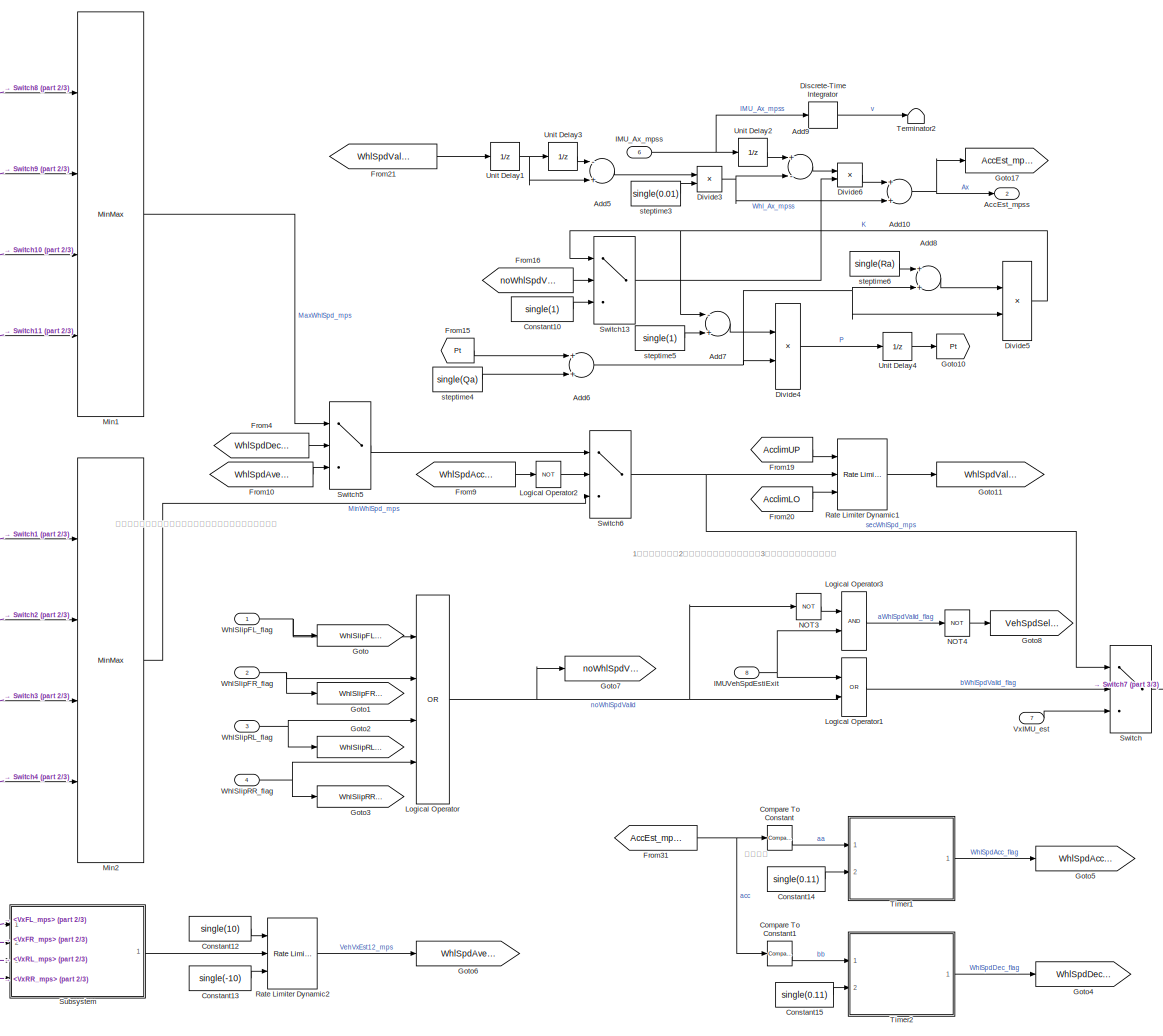
[diagram: WhlSpdSelect - part 1/3, center side, full height]
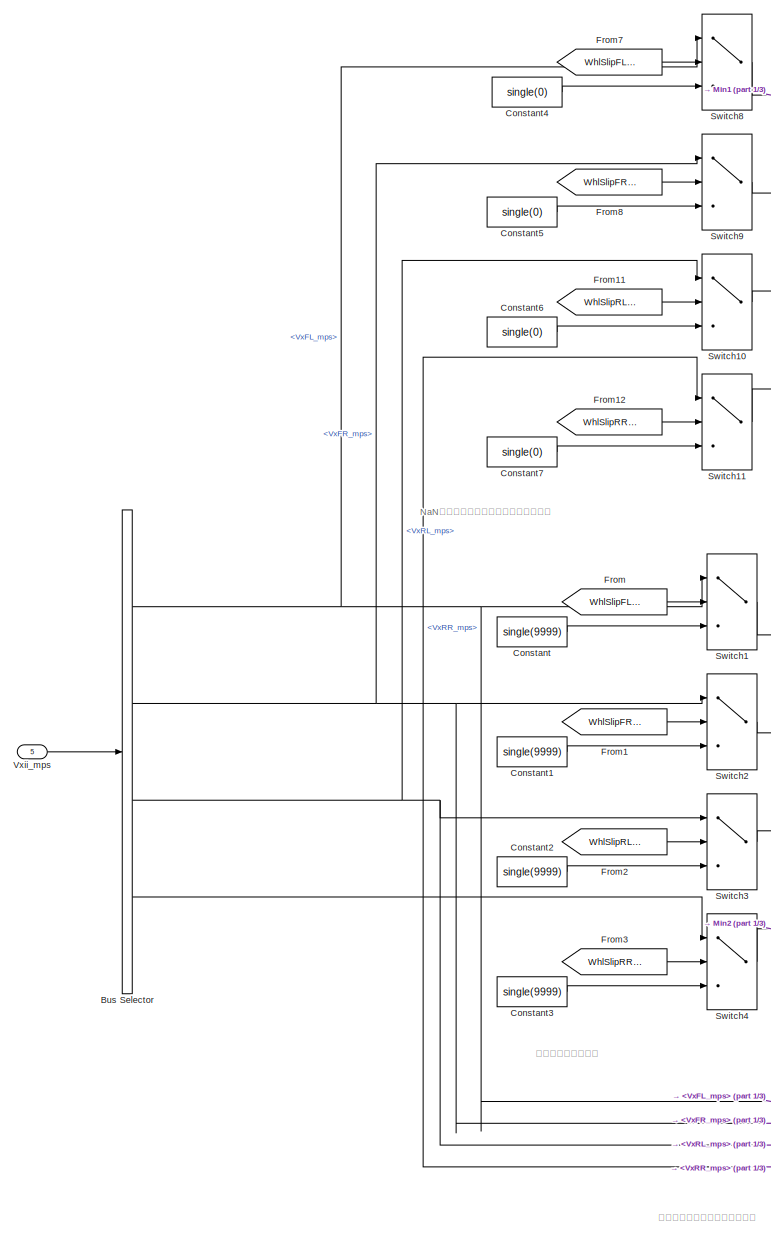
[diagram: WhlSpdSelect - part 2/3, left side, full height]
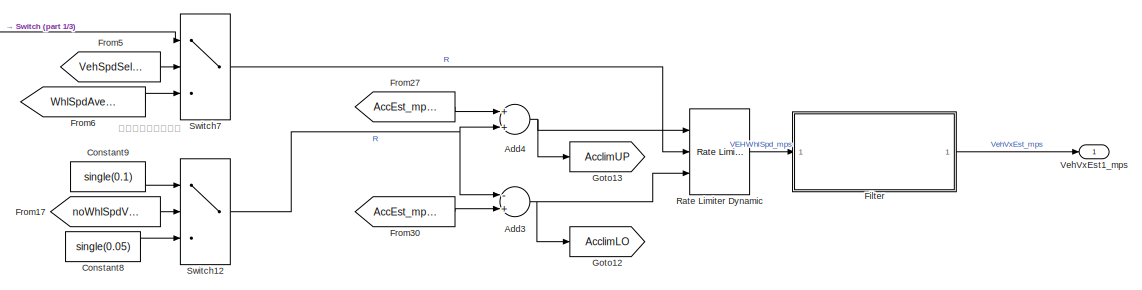
[diagram: WhlSpdSelect - part 3/3, bottom right region]
BLOCK [SubSystem] WhlSpdSelect
  Ports = [8, 2]
  RequestExecContextInheritance = off
BLOCK [Outport] WhlSpdSelect/AccEst_mpss
  IconDisplay = Port number
  Port = 2
BLOCK [Sum] WhlSpdSelect/Add10
  InputSameDT = off
  OutDataTypeStr = Inherit: Inherit via internal rule
  Ports = [2, 1]
  SaturateOnIntegerOverflow = off
BLOCK [Sum] WhlSpdSelect/Add3
  InputSameDT = off
  Inputs = -+
  OutDataTypeStr = Inherit: Inherit via internal rule
  Ports = [2, 1]
  SaturateOnIntegerOverflow = off
BLOCK [Sum] WhlSpdSelect/Add4
  InputSameDT = off
  OutDataTypeStr = Inherit: Inherit via internal rule
  Ports = [2, 1]
  SaturateOnIntegerOverflow = off
BLOCK [Sum] WhlSpdSelect/Add5
  InputSameDT = off
  Inputs = -+
  OutDataTypeStr = Inherit: Inherit via internal rule
  Ports = [2, 1]
  SaturateOnIntegerOverflow = off
BLOCK [Sum] WhlSpdSelect/Add6
  InputSameDT = off
  OutDataTypeStr = Inherit: Inherit via internal rule
  Ports = [2, 1]
  SaturateOnIntegerOverflow = off
BLOCK [Sum] WhlSpdSelect/Add7
  InputSameDT = off
  Inputs = -+
  OutDataTypeStr = Inherit: Inherit via internal rule
  Ports = [2, 1]
  SaturateOnIntegerOverflow = off
BLOCK [Sum] WhlSpdSelect/Add8
  InputSameDT = off
  OutDataTypeStr = Inherit: Inherit via internal rule
  Ports = [2, 1]
  SaturateOnIntegerOverflow = off
BLOCK [Sum] WhlSpdSelect/Add9
  InputSameDT = off
  Inputs = +-
  OutDataTypeStr = Inherit: Inherit via internal rule
  Ports = [2, 1]
  SaturateOnIntegerOverflow = off
BLOCK [BusSelector] WhlSpdSelect/Bus Selector
  OutputAsBus = off
  OutputSignals = VxFL_mps,VxFR_mps,VxRL_mps,VxRR_mps
  Ports = [1, 4]
BLOCK [Reference] WhlSpdSelect/Compare To Constant  REF=simulink/Logic and Bit
Operations/Compare
To Constant
  Ports = [1, 1]
  SourceBlock = simulink/Logic and Bit\nOperations/Compare\nTo Constant
  SourceProductBaseCode = SL
  SourceProductName = Simulink
  SourceType = Compare To Constant
BLOCK [Reference] WhlSpdSelect/Compare To Constant1  REF=simulink/Logic and Bit
Operations/Compare
To Constant
  Ports = [1, 1]
  SourceBlock = simulink/Logic and Bit\nOperations/Compare\nTo Constant
  SourceProductBaseCode = SL
  SourceProductName = Simulink
  SourceType = Compare To Constant
BLOCK [Constant] WhlSpdSelect/Constant
  Value = single(9999)
BLOCK [Constant] WhlSpdSelect/Constant1
  Value = single(9999)
BLOCK [Constant] WhlSpdSelect/Constant10
  Value = single(1)
BLOCK [Constant] WhlSpdSelect/Constant12
  Value = single(10)
BLOCK [Constant] WhlSpdSelect/Constant13
  Value = single(-10)
BLOCK [Constant] WhlSpdSelect/Constant14
  Value = single(0.11)
BLOCK [Constant] WhlSpdSelect/Constant15
  Value = single(0.11)
BLOCK [Constant] WhlSpdSelect/Constant2
  Value = single(9999)
BLOCK [Constant] WhlSpdSelect/Constant3
  Value = single(9999)
BLOCK [Constant] WhlSpdSelect/Constant4
  Value = single(0)
BLOCK [Constant] WhlSpdSelect/Constant5
  Value = single(0)
BLOCK [Constant] WhlSpdSelect/Constant6
  Value = single(0)
BLOCK [Constant] WhlSpdSelect/Constant7
  Value = single(0)
BLOCK [Constant] WhlSpdSelect/Constant8
  Value = single(0.05)
BLOCK [Constant] WhlSpdSelect/Constant9
  Value = single(0.1)
BLOCK [DiscreteIntegrator] WhlSpdSelect/Discrete-Time Integrator
  ICPrevOutput = DiscIntNeverNeededParam
  ICPrevScaledInput = DiscIntNeverNeededParam
  InitialConditionSetting = Auto
  Ports = [1, 1]
  SampleTime = -1
BLOCK [Product] WhlSpdSelect/Divide3
  InputSameDT = off
  Inputs = */
  OutDataTypeStr = Inherit: Inherit via internal rule
  Ports = [2, 1]
  RndMeth = Floor
  SaturateOnIntegerOverflow = off
BLOCK [Product] WhlSpdSelect/Divide4
  InputSameDT = off
  Inputs = **
  OutDataTypeStr = Inherit: Inherit via internal rule
  Ports = [2, 1]
  RndMeth = Floor
  SaturateOnIntegerOverflow = off
BLOCK [Product] WhlSpdSelect/Divide5
  InputSameDT = off
  Inputs = /*
  OutDataTypeStr = Inherit: Inherit via internal rule
  Ports = [2, 1]
  RndMeth = Floor
  SaturateOnIntegerOverflow = off
BLOCK [Product] WhlSpdSelect/Divide6
  InputSameDT = off
  Inputs = **
  OutDataTypeStr = Inherit: Inherit via internal rule
  Ports = [2, 1]
  RndMeth = Floor
  SaturateOnIntegerOverflow = off
BLOCK [SubSystem] WhlSpdSelect/Filter
  Ports = [1, 1]
  RequestExecContextInheritance = off
BLOCK [Sum] WhlSpdSelect/Filter/Add
  InputSameDT = off
  OutDataTypeStr = Inherit: Inherit via internal rule
  Ports = [2, 1]
  SaturateOnIntegerOverflow = off
BLOCK [Constant] WhlSpdSelect/Filter/Constant
  Value = single(0)
BLOCK [Constant] WhlSpdSelect/Filter/Constant1
  Value = single(100)
BLOCK [Constant] WhlSpdSelect/Filter/Constant2
  Value = single(15)
BLOCK [Constant] WhlSpdSelect/Filter/Constant3
  Value = single(-15)
BLOCK [Gain] WhlSpdSelect/Filter/Gain
  Gain = 0
  OutDataTypeStr = Inherit: Inherit via internal rule
  ParamDataTypeStr = Inherit: Inherit via internal rule
  SaturateOnIntegerOverflow = off
BLOCK [Gain] WhlSpdSelect/Filter/Gain1
  OutDataTypeStr = Inherit: Inherit via internal rule
  ParamDataTypeStr = Inherit: Inherit via internal rule
  SaturateOnIntegerOverflow = off
BLOCK [Inport] WhlSpdSelect/Filter/In
  IconDisplay = Port number
BLOCK [Reference] WhlSpdSelect/Filter/Rate Limiter Dynamic  REF=simulink/Discontinuities/Rate Limiter
Dynamic
  Ports = [3, 1]
  SourceBlock = simulink/Discontinuities/Rate Limiter\nDynamic
  SourceProductBaseCode = SL
  SourceProductName = Simulink
  SourceType = Rate Limiter Dynamic
BLOCK [Reference] WhlSpdSelect/Filter/Saturation Dynamic  REF=simulink/Discontinuities/Saturation
Dynamic
  Ports = [3, 1]
  SourceBlock = simulink/Discontinuities/Saturation\nDynamic
  SourceProductBaseCode = SL
  SourceProductName = Simulink
  SourceType = Saturation Dynamic
BLOCK [UnitDelay] WhlSpdSelect/Filter/Unit Delay
  HasFrameUpgradeWarning = on
  SampleTime = -1
BLOCK [Outport] WhlSpdSelect/Filter/VehVxEst_mps
  IconDisplay = Port number
BLOCK [From] WhlSpdSelect/From
  GotoTag = WhlSlipFL_flag
BLOCK [From] WhlSpdSelect/From1
  GotoTag = WhlSlipFR_flag
BLOCK [From] WhlSpdSelect/From10
  GotoTag = WhlSpdAve_mps
BLOCK [From] WhlSpdSelect/From11
  GotoTag = WhlSlipRL_flag
BLOCK [From] WhlSpdSelect/From12
  GotoTag = WhlSlipRR_flag
BLOCK [From] WhlSpdSelect/From15
  GotoTag = Pt
BLOCK [From] WhlSpdSelect/From16
  GotoTag = noWhlSpdValid
BLOCK [From] WhlSpdSelect/From17
  GotoTag = noWhlSpdValid
BLOCK [From] WhlSpdSelect/From19
  GotoTag = AcclimUP
BLOCK [From] WhlSpdSelect/From2
  GotoTag = WhlSlipRL_flag
BLOCK [From] WhlSpdSelect/From20
  GotoTag = AcclimLO
BLOCK [From] WhlSpdSelect/From21
  GotoTag = WhlSpdValid_mps
BLOCK [From] WhlSpdSelect/From27
  GotoTag = AccEst_mpss
BLOCK [From] WhlSpdSelect/From3
  GotoTag = WhlSlipRR_flag
BLOCK [From] WhlSpdSelect/From30
  GotoTag = AccEst_mpss
BLOCK [From] WhlSpdSelect/From31
  GotoTag = AccEst_mpss
BLOCK [From] WhlSpdSelect/From4
  GotoTag = WhlSpdDec_flag
BLOCK [From] WhlSpdSelect/From5
  GotoTag = VehSpdSel_flag
BLOCK [From] WhlSpdSelect/From6
  GotoTag = WhlSpdAve_mps
BLOCK [From] WhlSpdSelect/From7
  GotoTag = WhlSlipFL_flag
BLOCK [From] WhlSpdSelect/From8
  GotoTag = WhlSlipFR_flag
BLOCK [From] WhlSpdSelect/From9
  GotoTag = WhlSpdAcc_flag
BLOCK [Goto] WhlSpdSelect/Goto
  GotoTag = WhlSlipFL_flag
BLOCK [Goto] WhlSpdSelect/Goto1
  GotoTag = WhlSlipFR_flag
BLOCK [Goto] WhlSpdSelect/Goto10
  GotoTag = Pt
BLOCK [Goto] WhlSpdSelect/Goto11
  GotoTag = WhlSpdValid_mps
BLOCK [Goto] WhlSpdSelect/Goto12
  GotoTag = AcclimLO
BLOCK [Goto] WhlSpdSelect/Goto13
  GotoTag = AcclimUP
BLOCK [Goto] WhlSpdSelect/Goto17
  GotoTag = AccEst_mpss
BLOCK [Goto] WhlSpdSelect/Goto2
  GotoTag = WhlSlipRL_flag
BLOCK [Goto] WhlSpdSelect/Goto3
  GotoTag = WhlSlipRR_flag
BLOCK [Goto] WhlSpdSelect/Goto4
  GotoTag = WhlSpdDec_flag
BLOCK [Goto] WhlSpdSelect/Goto5
  GotoTag = WhlSpdAcc_flag
BLOCK [Goto] WhlSpdSelect/Goto6
  GotoTag = WhlSpdAve_mps
BLOCK [Goto] WhlSpdSelect/Goto7
  GotoTag = noWhlSpdValid
BLOCK [Goto] WhlSpdSelect/Goto8
  GotoTag = VehSpdSel_flag
BLOCK [Inport] WhlSpdSelect/IMUVehSpdEstiExit
  IconDisplay = Port number
  Port = 8
BLOCK [Inport] WhlSpdSelect/IMU_Ax_mpss
  IconDisplay = Port number
  Port = 6
BLOCK [Logic] WhlSpdSelect/Logical Operator
  AllPortsSameDT = off
  Inputs = 4
  Operator = OR
  OutDataTypeStr = boolean
  Ports = [4, 1]
BLOCK [Logic] WhlSpdSelect/Logical Operator1
  AllPortsSameDT = off
  Operator = OR
  OutDataTypeStr = boolean
  Ports = [2, 1]
BLOCK [Logic] WhlSpdSelect/Logical Operator2
  AllPortsSameDT = off
  Operator = NOT
  OutDataTypeStr = boolean
  Ports = [1, 1]
BLOCK [Logic] WhlSpdSelect/Logical Operator3
  AllPortsSameDT = off
  OutDataTypeStr = boolean
  Ports = [2, 1]
BLOCK [MinMax] WhlSpdSelect/Min1
  Function = max
  InputSameDT = off
  Inputs = 4
  Ports = [4, 1]
  SaturateOnIntegerOverflow = off
BLOCK [MinMax] WhlSpdSelect/Min2
  InputSameDT = off
  Inputs = 4
  Ports = [4, 1]
  SaturateOnIntegerOverflow = off
BLOCK [Logic] WhlSpdSelect/NOT3
  AllPortsSameDT = off
  Operator = NOT
  OutDataTypeStr = boolean
  Ports = [1, 1]
BLOCK [Logic] WhlSpdSelect/NOT4
  AllPortsSameDT = off
  Operator = NOT
  OutDataTypeStr = boolean
  Ports = [1, 1]
BLOCK [Reference] WhlSpdSelect/Rate Limiter Dynamic  REF=simulink/Discontinuities/Rate Limiter
Dynamic
  Ports = [3, 1]
  SourceBlock = simulink/Discontinuities/Rate Limiter\nDynamic
  SourceProductBaseCode = SL
  SourceProductName = Simulink
  SourceType = Rate Limiter Dynamic
BLOCK [Reference] WhlSpdSelect/Rate Limiter Dynamic1  REF=simulink/Discontinuities/Rate Limiter
Dynamic
  Ports = [3, 1]
  SourceBlock = simulink/Discontinuities/Rate Limiter\nDynamic
  SourceProductBaseCode = SL
  SourceProductName = Simulink
  SourceType = Rate Limiter Dynamic
BLOCK [Reference] WhlSpdSelect/Rate Limiter Dynamic2  REF=simulink/Discontinuities/Rate Limiter
Dynamic
  Ports = [3, 1]
  SourceBlock = simulink/Discontinuities/Rate Limiter\nDynamic
  SourceProductBaseCode = SL
  SourceProductName = Simulink
  SourceType = Rate Limiter Dynamic
BLOCK [SubSystem] WhlSpdSelect/Subsystem
  Ports = [4, 1]
  RequestExecContextInheritance = off
BLOCK [Inport] WhlSpdSelect/Subsystem/<VxFL_mps>
  IconDisplay = Port number
BLOCK [Inport] WhlSpdSelect/Subsystem/<VxFR_mps>
  IconDisplay = Port number
  Port = 2
BLOCK [Inport] WhlSpdSelect/Subsystem/<VxRL_mps>
  IconDisplay = Port number
  Port = 3
BLOCK [Inport] WhlSpdSelect/Subsystem/<VxRR_mps>
  IconDisplay = Port number
  Port = 4
BLOCK [Sum] WhlSpdSelect/Subsystem/Add3
  InputSameDT = off
  Inputs = ++++
  OutDataTypeStr = Inherit: Inherit via internal rule
  Ports = [4, 1]
  SaturateOnIntegerOverflow = off
BLOCK [Sum] WhlSpdSelect/Subsystem/Add4
  InputSameDT = off
  Inputs = +--
  OutDataTypeStr = Inherit: Inherit via internal rule
  Ports = [3, 1]
  SaturateOnIntegerOverflow = off
BLOCK [Gain] WhlSpdSelect/Subsystem/Gain1
  Gain = 1/2
  OutDataTypeStr = Inherit: Inherit via internal rule
  ParamDataTypeStr = Inherit: Inherit via internal rule
  SaturateOnIntegerOverflow = off
BLOCK [Outport] WhlSpdSelect/Subsystem/MiddleWhlSpd_mps
  IconDisplay = Port number
BLOCK [MinMax] WhlSpdSelect/Subsystem/Min3
  Function = max
  InputSameDT = off
  Inputs = 4
  Ports = [4, 1]
  SaturateOnIntegerOverflow = off
BLOCK [MinMax] WhlSpdSelect/Subsystem/Min4
  InputSameDT = off
  Inputs = 4
  Ports = [4, 1]
  SaturateOnIntegerOverflow = off
BLOCK [SubSystem] WhlSpdSelect/Subsystem/Subsystem
  Commented = on
  Ports = [4, 1]
  RequestExecContextInheritance = off
BLOCK [Sum] WhlSpdSelect/Subsystem/Subsystem/Add
  Commented = on
  InputSameDT = off
  Inputs = ++++
  OutDataTypeStr = Inherit: Inherit via internal rule
  Ports = [4, 1]
  SaturateOnIntegerOverflow = off
BLOCK [Sum] WhlSpdSelect/Subsystem/Subsystem/Add1
  Commented = on
  InputSameDT = off
  Inputs = +--
  OutDataTypeStr = Inherit: Inherit via internal rule
  Ports = [3, 1]
  SaturateOnIntegerOverflow = off
BLOCK [Sum] WhlSpdSelect/Subsystem/Subsystem/Add2
  Commented = on
  InputSameDT = off
  Inputs = -+
  OutDataTypeStr = Inherit: Inherit via internal rule
  Ports = [2, 1]
  SaturateOnIntegerOverflow = off
BLOCK [Reference] WhlSpdSelect/Subsystem/Subsystem/Compare To Constant1  REF=simulink/Logic and Bit
Operations/Compare
To Constant
  Commented = on
  Ports = [1, 1]
  SourceBlock = simulink/Logic and Bit\nOperations/Compare\nTo Constant
  SourceProductBaseCode = SL
  SourceProductName = Simulink
  SourceType = Compare To Constant
BLOCK [Reference] WhlSpdSelect/Subsystem/Subsystem/Compare To Constant2  REF=simulink/Logic and Bit
Operations/Compare
To Constant
  Commented = on
  Ports = [1, 1]
  SourceBlock = simulink/Logic and Bit\nOperations/Compare\nTo Constant
  SourceProductBaseCode = SL
  SourceProductName = Simulink
  SourceType = Compare To Constant
BLOCK [Product] WhlSpdSelect/Subsystem/Subsystem/Divide1
  Commented = on
  InputSameDT = off
  Inputs = */
  OutDataTypeStr = Inherit: Inherit via internal rule
  Ports = [2, 1]
  RndMeth = Floor
  SaturateOnIntegerOverflow = off
BLOCK [Gain] WhlSpdSelect/Subsystem/Subsystem/Gain
  Commented = on
  Gain = 1/2
  OutDataTypeStr = Inherit: Inherit via internal rule
  ParamDataTypeStr = Inherit: Inherit via internal rule
  SaturateOnIntegerOverflow = off
BLOCK [Inport] WhlSpdSelect/Subsystem/Subsystem/In1
  IconDisplay = Port number
BLOCK [Inport] WhlSpdSelect/Subsystem/Subsystem/In2
  IconDisplay = Port number
  Port = 2
BLOCK [Inport] WhlSpdSelect/Subsystem/Subsystem/In3
  IconDisplay = Port number
  Port = 3
BLOCK [Inport] WhlSpdSelect/Subsystem/Subsystem/In4
  IconDisplay = Port number
  Port = 4
BLOCK [MinMax] WhlSpdSelect/Subsystem/Subsystem/Max
  Commented = on
  Function = max
  InputSameDT = off
  Inputs = 3
  Ports = [3, 1]
  SaturateOnIntegerOverflow = off
BLOCK [MinMax] WhlSpdSelect/Subsystem/Subsystem/Max1
  Commented = on
  Function = max
  InputSameDT = off
  Inputs = 3
  Ports = [3, 1]
  SaturateOnIntegerOverflow = off
BLOCK [MinMax] WhlSpdSelect/Subsystem/Subsystem/Max2
  Commented = on
  InputSameDT = off
  Inputs = 2
  Ports = [2, 1]
  SaturateOnIntegerOverflow = off
BLOCK [MinMax] WhlSpdSelect/Subsystem/Subsystem/Max3
  Commented = on
  InputSameDT = off
  Inputs = 3
  Ports = [3, 1]
  SaturateOnIntegerOverflow = off
BLOCK [MinMax] WhlSpdSelect/Subsystem/Subsystem/Max4
  Commented = on
  InputSameDT = off
  Inputs = 3
  Ports = [3, 1]
  SaturateOnIntegerOverflow = off
BLOCK [MinMax] WhlSpdSelect/Subsystem/Subsystem/Max5
  Commented = on
  Function = max
  InputSameDT = off
  Inputs = 2
  Ports = [2, 1]
  SaturateOnIntegerOverflow = off
BLOCK [MinMax] WhlSpdSelect/Subsystem/Subsystem/Min1
  Commented = on
  Function = max
  InputSameDT = off
  Inputs = 4
  Ports = [4, 1]
  SaturateOnIntegerOverflow = off
BLOCK [MinMax] WhlSpdSelect/Subsystem/Subsystem/Min2
  Commented = on
  InputSameDT = off
  Inputs = 4
  Ports = [4, 1]
  SaturateOnIntegerOverflow = off
BLOCK [Logic] WhlSpdSelect/Subsystem/Subsystem/NOT
  AllPortsSameDT = off
  Commented = on
  Operator = NOT
  OutDataTypeStr = boolean
  Ports = [1, 1]
BLOCK [Outport] WhlSpdSelect/Subsystem/Subsystem/Out1
  IconDisplay = Port number
BLOCK [Switch] WhlSpdSelect/Subsystem/Subsystem/Switch
  Commented = on
  Criteria = u2 ~= 0
  InputSameDT = off
  SaturateOnIntegerOverflow = off
BLOCK [Switch] WhlSpdSelect/Subsystem/Subsystem/Switch1
  Commented = on
  Criteria = u2 ~= 0
  InputSameDT = off
  SaturateOnIntegerOverflow = off
BLOCK [UnitDelay] WhlSpdSelect/Subsystem/Subsystem/Unit Delay1
  Commented = on
  HasFrameUpgradeWarning = on
  SampleTime = -1
BLOCK [Constant] WhlSpdSelect/Subsystem/Subsystem/steptime1
  Commented = on
  Value = single(0.01)
BLOCK [Switch] WhlSpdSelect/Switch
  Criteria = u2 ~= 0
  InputSameDT = off
  SaturateOnIntegerOverflow = off
BLOCK [Switch] WhlSpdSelect/Switch1
  Criteria = u2 ~= 0
  InputSameDT = off
  SaturateOnIntegerOverflow = off
BLOCK [Switch] WhlSpdSelect/Switch10
  Criteria = u2 ~= 0
  InputSameDT = off
  SaturateOnIntegerOverflow = off
BLOCK [Switch] WhlSpdSelect/Switch11
  Criteria = u2 ~= 0
  InputSameDT = off
  SaturateOnIntegerOverflow = off
BLOCK [Switch] WhlSpdSelect/Switch12
  Criteria = u2 ~= 0
  InputSameDT = off
  SaturateOnIntegerOverflow = off
BLOCK [Switch] WhlSpdSelect/Switch13
  Criteria = u2 ~= 0
  InputSameDT = off
  SaturateOnIntegerOverflow = off
BLOCK [Switch] WhlSpdSelect/Switch2
  Criteria = u2 ~= 0
  InputSameDT = off
  SaturateOnIntegerOverflow = off
BLOCK [Switch] WhlSpdSelect/Switch3
  Criteria = u2 ~= 0
  InputSameDT = off
  SaturateOnIntegerOverflow = off
BLOCK [Switch] WhlSpdSelect/Switch4
  Criteria = u2 ~= 0
  InputSameDT = off
  SaturateOnIntegerOverflow = off
BLOCK [Switch] WhlSpdSelect/Switch5
  Criteria = u2 ~= 0
  InputSameDT = off
  SaturateOnIntegerOverflow = off
BLOCK [Switch] WhlSpdSelect/Switch6
  Criteria = u2 ~= 0
  InputSameDT = off
  SaturateOnIntegerOverflow = off
BLOCK [Switch] WhlSpdSelect/Switch7
  Criteria = u2 ~= 0
  InputSameDT = off
  SaturateOnIntegerOverflow = off
BLOCK [Switch] WhlSpdSelect/Switch8
  Criteria = u2 ~= 0
  InputSameDT = off
  SaturateOnIntegerOverflow = off
BLOCK [Switch] WhlSpdSelect/Switch9
  Criteria = u2 ~= 0
  InputSameDT = off
  SaturateOnIntegerOverflow = off
BLOCK [Terminator] WhlSpdSelect/Terminator2
BLOCK [SubSystem] WhlSpdSelect/Timer1
  ErrorFcn = Stateflow.Translate.translate
  PermitHierarchicalResolution = ExplicitOnly
  Ports = [2, 1]
  RequestExecContextInheritance = off
  SFBlockType = Chart
  TreatAsAtomicUnit = on
BLOCK [Demux] WhlSpdSelect/Timer1/ Demux 
  Outputs = 1
  Ports = [1, 1]
BLOCK [S-Function] WhlSpdSelect/Timer1/ SFunction 
  EnableBusSupport = on
  FunctionName = sf_sfun
  Parameters = 0
  PortCounts = [2 2]
  Ports = [2, 2]
  SFcnIsStateOwnerBlock = off
  SFunctionDeploymentMode = off
  Tag = Stateflow S-Function 15
BLOCK [Terminator] WhlSpdSelect/Timer1/ Terminator 
BLOCK [Inport] WhlSpdSelect/Timer1/CountTime
  IconDisplay = Port number
  Port = 2
BLOCK [Outport] WhlSpdSelect/Timer1/Exit
  IconDisplay = Port number
BLOCK [Inport] WhlSpdSelect/Timer1/Trigger
  IconDisplay = Port number
BLOCK [SubSystem] WhlSpdSelect/Timer2
  ErrorFcn = Stateflow.Translate.translate
  PermitHierarchicalResolution = ExplicitOnly
  Ports = [2, 1]
  RequestExecContextInheritance = off
  SFBlockType = Chart
  TreatAsAtomicUnit = on
BLOCK [Demux] WhlSpdSelect/Timer2/ Demux 
  Outputs = 1
  Ports = [1, 1]
BLOCK [S-Function] WhlSpdSelect/Timer2/ SFunction 
  EnableBusSupport = on
  FunctionName = sf_sfun
  Parameters = 0
  PortCounts = [2 2]
  Ports = [2, 2]
  SFcnIsStateOwnerBlock = off
  SFunctionDeploymentMode = off
  Tag = Stateflow S-Function 16
BLOCK [Terminator] WhlSpdSelect/Timer2/ Terminator 
BLOCK [Inport] WhlSpdSelect/Timer2/CountTime
  IconDisplay = Port number
  Port = 2
BLOCK [Outport] WhlSpdSelect/Timer2/Exit
  IconDisplay = Port number
BLOCK [Inport] WhlSpdSelect/Timer2/Trigger
  IconDisplay = Port number
BLOCK [UnitDelay] WhlSpdSelect/Unit Delay1
  HasFrameUpgradeWarning = on
  SampleTime = -1
BLOCK [UnitDelay] WhlSpdSelect/Unit Delay2
  HasFrameUpgradeWarning = on
  SampleTime = -1
BLOCK [UnitDelay] WhlSpdSelect/Unit Delay3
  HasFrameUpgradeWarning = on
  SampleTime = -1
BLOCK [UnitDelay] WhlSpdSelect/Unit Delay4
  HasFrameUpgradeWarning = on
  InitialCondition = 0.01
  SampleTime = -1
BLOCK [Outport] WhlSpdSelect/VehVxEst1_mps
  IconDisplay = Port number
BLOCK [Inport] WhlSpdSelect/VxIMU_est
  IconDisplay = Port number
  Port = 7
BLOCK [Inport] WhlSpdSelect/Vxii_mps
  IconDisplay = Port number
  Port = 5
BLOCK [Inport] WhlSpdSelect/WhlSlipFL_flag
  IconDisplay = Port number
BLOCK [Inport] WhlSpdSelect/WhlSlipFR_flag
  IconDisplay = Port number
  Port = 2
BLOCK [Inport] WhlSpdSelect/WhlSlipRL_flag
  IconDisplay = Port number
  Port = 3
BLOCK [Inport] WhlSpdSelect/WhlSlipRR_flag
  IconDisplay = Port number
  Port = 4
BLOCK [Constant] WhlSpdSelect/steptime3
  Value = single(0.01)
BLOCK [Constant] WhlSpdSelect/steptime4
  Value = single(Qa)
BLOCK [Constant] WhlSpdSelect/steptime5
  Value = single(1)
BLOCK [Constant] WhlSpdSelect/steptime6
  Value = single(Ra)
BLOCK [SubSystem] 坐标系转换
  Ports = [7, 2]
  RequestExecContextInheritance = off
BLOCK [Sum] 坐标系转换/Add
  InputSameDT = off
  Inputs = +-
  OutDataTypeStr = Inherit: Inherit via internal rule
  Ports = [2, 1]
  SaturateOnIntegerOverflow = off
BLOCK [Sum] 坐标系转换/Add1
  InputSameDT = off
  OutDataTypeStr = Inherit: Inherit via internal rule
  Ports = [2, 1]
  SaturateOnIntegerOverflow = off
BLOCK [Sum] 坐标系转换/Add2
  InputSameDT = off
  Inputs = +-
  OutDataTypeStr = Inherit: Inherit via internal rule
  Ports = [2, 1]
  SaturateOnIntegerOverflow = off
BLOCK [Sum] 坐标系转换/Add3
  InputSameDT = off
  OutDataTypeStr = Inherit: Inherit via internal rule
  Ports = [2, 1]
  SaturateOnIntegerOverflow = off
BLOCK [Trigonometry] 坐标系转换/Asin
  Operator = cos
  Ports = [1, 1]
BLOCK [Trigonometry] 坐标系转换/Asin1
  Operator = cos
  Ports = [1, 1]
BLOCK [BusCreator] 坐标系转换/Bus Creator
  DisplayOption = bar
  InheritFromInputs = on
  Inputs = 4
  Ports = [4, 1]
BLOCK [Constant] 坐标系转换/Constant
  Value = single(Ldwr)
BLOCK [Constant] 坐标系转换/Constant1
  Value = single(Ldwf)
BLOCK [From] 坐标系转换/From
  GotoTag = Vldwr
BLOCK [From] 坐标系转换/From2
  GotoTag = Vldwf
BLOCK [Gain] 坐标系转换/Gain
  Gain = 1/2
  OutDataTypeStr = Inherit: Inherit via internal rule
  ParamDataTypeStr = Inherit: Inherit via internal rule
  SaturateOnIntegerOverflow = off
BLOCK [Gain] 坐标系转换/Gain1
  Gain = 1/2
  OutDataTypeStr = Inherit: Inherit via internal rule
  ParamDataTypeStr = Inherit: Inherit via internal rule
  SaturateOnIntegerOverflow = off
BLOCK [Gain] 坐标系转换/Gain2
  Gain = pi/180
  OutDataTypeStr = Inherit: Inherit via internal rule
  ParamDataTypeStr = Inherit: Inherit via internal rule
  SaturateOnIntegerOverflow = off
BLOCK [Gain] 坐标系转换/Gain3
  Gain = pi/180
  OutDataTypeStr = Inherit: Inherit via internal rule
  ParamDataTypeStr = Inherit: Inherit via internal rule
  SaturateOnIntegerOverflow = off
BLOCK [Gain] 坐标系转换/Gain4
  Gain = pi/180
  OutDataTypeStr = Inherit: Inherit via internal rule
  ParamDataTypeStr = Inherit: Inherit via internal rule
  SaturateOnIntegerOverflow = off
BLOCK [Goto] 坐标系转换/Goto
  GotoTag = Vldwr
BLOCK [Goto] 坐标系转换/Goto1
  GotoTag = Vldwf
BLOCK [Inport] 坐标系转换/IMU_YawRate_dps
  IconDisplay = Port number
  Port = 5
BLOCK [Outport] 坐标系转换/IMU_YawRate_dps1
  IconDisplay = Port number
  Port = 2
BLOCK [Product] 坐标系转换/Product
  InputSameDT = off
  OutDataTypeStr = Inherit: Inherit via internal rule
  Ports = [2, 1]
  RndMeth = Floor
  SaturateOnIntegerOverflow = off
BLOCK [Product] 坐标系转换/Product1
  InputSameDT = off
  OutDataTypeStr = Inherit: Inherit via internal rule
  Ports = [2, 1]
  RndMeth = Floor
  SaturateOnIntegerOverflow = off
BLOCK [Product] 坐标系转换/Product2
  InputSameDT = off
  OutDataTypeStr = Inherit: Inherit via internal rule
  Ports = [2, 1]
  RndMeth = Floor
  SaturateOnIntegerOverflow = off
BLOCK [Product] 坐标系转换/Product3
  InputSameDT = off
  OutDataTypeStr = Inherit: Inherit via internal rule
  Ports = [2, 1]
  RndMeth = Floor
  SaturateOnIntegerOverflow = off
BLOCK [Outport] 坐标系转换/Vxii_mps
  IconDisplay = Port number
BLOCK [Inport] 坐标系转换/WhlSpdFL_mps
  IconDisplay = Port number
BLOCK [Inport] 坐标系转换/WhlSpdFR_mps
  IconDisplay = Port number
  Port = 2
BLOCK [Inport] 坐标系转换/WhlSpdRL_mps
  IconDisplay = Port number
  Port = 3
BLOCK [Inport] 坐标系转换/WhlSpdRR_mps
  IconDisplay = Port number
  Port = 4
BLOCK [Inport] 坐标系转换/WhlStrAngL_deg
  IconDisplay = Port number
  Port = 6
BLOCK [Inport] 坐标系转换/WhlStrAngR_deg
  IconDisplay = Port number
  Port = 7
ANNOTATION (root): 信号的滤波去噪应该在其他模块完成
ANNOTATION (root): 和实车相反
ANNOTATION IntglJudgment : 对加速度进行积分
ANNOTATION IntglJudgment : 积分开始时，需要给初始值
ANNOTATION IntglJudgment : 计时器，当积分速度大于轮速一个时间后，退出积分速度。
ANNOTATION WhlSlpageJudgment: 实践中很难同时满足这三个条件。 一般只满足后两个其中一个即可。
ANNOTATION WhlSlpageJudgment: 更改记录：1、理了信号线，更整齐。 2、加速度差，加速度差的微分的判断加入滤波模块。 3、轮速选取改为选取最大轮速。
ANNOTATION WhlSlpageJudgment: 选取一个最大轮速
ANNOTATION WhlSlpageJudgment/加速度差判断: 输出“1”代表判定有效
ANNOTATION WhlSlpageJudgment/加速度差的微分的判断: 此处应当是比较重的滤波
ANNOTATION WhlSlpageJudgment/加速度差的微分的判断: 输出“1”代表判定有效
ANNOTATION WhlSlpageJudgment/速差判断: 输出“1”代表判定有效
ANNOTATION WhlSpdSelect: 1、有可信轮速。2、无可信轮速，积分未退出。3、无可信轮速，积分退出。
ANNOTATION WhlSpdSelect: NaN用法存疑，对自动代码生成影响未知
ANNOTATION WhlSpdSelect: 判断阈值
ANNOTATION WhlSpdSelect: 对可信车速求最小值
ANNOTATION WhlSpdSelect: 用于计算车辆加减速状态的车速
ANNOTATION WhlSpdSelect: 若轮速加速，则选取小轮速；若轮速减速，则选取最大轮速。
ANNOTATION WhlSpdSelect: 选取什么轮速合适？
ANNOTATION WhlSpdSelect/Subsystem/Subsystem: 可在去掉最大最小值里再取最大、最小
ANNOTATION 坐标系转换: cos模块的单位是弧度制、
ANNOTATION 坐标系转换: 未考虑漂移工况
ANNOTATION 坐标系转换: 顺时针为正，逆时针为负。
LINE Bus Selector:1 -> Cast To Double1:1
LINE Bus Selector:10 -> IntglJudgment :8
LINE Bus Selector:2 -> Cast To Double2:1
LINE Bus Selector:3 -> Cast To Double3:1
LINE Bus Selector:4 -> Cast To Double4:1
LINE Bus Selector:5 -> Cast To Double5:1
LINE Bus Selector:6 -> Cast To Double6:1
LINE Bus Selector:7 -> Cast To Double7:1
LINE Bus Selector:8 -> Gain5:1
LINE Bus Selector:9 -> IntglJudgment :5
LINE Cast To Double1:1 -> 坐标系转换:1
LINE Cast To Double2:1 -> 坐标系转换:2
LINE Cast To Double3:1 -> 坐标系转换:3
LINE Cast To Double4:1 -> 坐标系转换:4
LINE Cast To Double5:1 -> 坐标系转换:5
LINE Cast To Double6:1 -> 坐标系转换:6
LINE Cast To Double7:1 -> 坐标系转换:7
NET Cast To Double:1 -> Goto1:1, WhlSlpageJudgment:3
NET From1:1 -> Out Bus Element1:1, WhlSpdSelect:5
LINE From2:1 -> Unit Delay1:1
LINE From3:1 -> Unit Delay:1
LINE From4:1 -> IntglJudgment :9
LINE From5:1 -> WhlSpdSelect:6
LINE From6:1 -> IntglJudgment :6
LINE From7:1 -> WhlSlpageJudgment:5
LINE Gain5:1 -> Cast To Double:1
NET In Bus Element:1 -> Bus Selector:1, Goto5:1
LINE IntglJudgment /AND:1 -> IntglJudgment /Goto:1
LINE IntglJudgment /Acc_POS:1 -> IntglJudgment /Cast To Double:1
LINE IntglJudgment /Add10:1 -> IntglJudgment /Switch6:1
LINE IntglJudgment /Add1:1 -> IntglJudgment /Compare To Constant:1
LINE IntglJudgment /Add2:1 -> IntglJudgment /Compare To Constant1:1
NET IntglJudgment /Add3:1 -> IntglJudgment /Add2:2, IntglJudgment /VxIMU_est:1
LINE IntglJudgment /Add4:1 -> IntglJudgment /Switch4:1
LINE IntglJudgment /Add:1 -> IntglJudgment /Switch1:1
LINE IntglJudgment /Ax_Valid:1 -> IntglJudgment /AND:1
LINE IntglJudgment /Cast To Double1:1 -> IntglJudgment /AND:2
NET IntglJudgment /Cast To Double:1 -> IntglJudgment /Add1:2, IntglJudgment /Unit Delay4:1
LINE IntglJudgment /Compare To Constant1:1 -> IntglJudgment /Switch6:2
LINE IntglJudgment /Compare To Constant:1 -> IntglJudgment /Logical Operator2:2
LINE IntglJudgment /Constant:1 -> IntglJudgment /Switch1:3
LINE IntglJudgment /FFVehVxEst_mps:1 -> IntglJudgment /Add4:2
NET IntglJudgment /From1:1 -> IntglJudgment /Switch4:2, IntglJudgment /Unit Delay3:1
LINE IntglJudgment /From:1 -> IntglJudgment /Switch1:2
LINE IntglJudgment /IMU_Ax_mpss:1 -> IntglJudgment /Product:1
LINE IntglJudgment /InitZORE:1 -> IntglJudgment /Switch4:3
LINE IntglJudgment /Logical Operator1:1 -> IntglJudgment /Logical Operator2:1
LINE IntglJudgment /Logical Operator2:1 -> IntglJudgment /Cast To Double1:1
LINE IntglJudgment /Logical Operator3:1 -> IntglJudgment /Switch3:2
LINE IntglJudgment /Logical Operator:1 -> IntglJudgment /Logical Operator1:1
NET IntglJudgment /Min:1 -> IntglJudgment /Relational Operator9:1, IntglJudgment /Unit Delay2:1
LINE IntglJudgment /Product:1 -> IntglJudgment /Add:1
LINE IntglJudgment /Relational Operator9:1 -> IntglJudgment /IMUVehSpdEstiExit:1
LINE IntglJudgment /Reset:1 -> IntglJudgment /Switch6:3
NET IntglJudgment /ResetDelay:1 -> IntglJudgment /Min:2, IntglJudgment /Relational Operator9:2
LINE IntglJudgment /Saturation1:1 -> IntglJudgment /Add:2
LINE IntglJudgment /Saturation:1 -> IntglJudgment /Add3:1
LINE IntglJudgment /Steptime:1 -> IntglJudgment /Add10:2
NET IntglJudgment /Switch1:1 -> IntglJudgment /Saturation:1, IntglJudgment /Unit Delay:1
NET IntglJudgment /Switch3:1 -> IntglJudgment /Add3:2, IntglJudgment /Unit Delay1:1
LINE IntglJudgment /Switch4:1 -> IntglJudgment /Switch3:1
LINE IntglJudgment /Switch6:1 -> IntglJudgment /Min:1
LINE IntglJudgment /Unit Delay1:1 -> IntglJudgment /Switch3:3
LINE IntglJudgment /Unit Delay2:1 -> IntglJudgment /Add10:1
LINE IntglJudgment /Unit Delay3:1 -> IntglJudgment /Logical Operator3:1
LINE IntglJudgment /Unit Delay4:1 -> IntglJudgment /Add1:1
LINE IntglJudgment /Unit Delay:1 -> IntglJudgment /Saturation1:1
LINE IntglJudgment /WhlSlipFL_flag:1 -> IntglJudgment /Logical Operator:1
LINE IntglJudgment /WhlSlipFR_flag:1 -> IntglJudgment /Logical Operator:2
LINE IntglJudgment /WhlSlipRL_flag:1 -> IntglJudgment /Logical Operator:3
LINE IntglJudgment /WhlSlipRR_flag:1 -> IntglJudgment /Logical Operator:4
LINE IntglJudgment /WhlSpdMax_mps:1 -> IntglJudgment /Add2:1
LINE IntglJudgment /steptime1:1 -> IntglJudgment /Product:2
LINE IntglJudgment /steptime2:1 -> IntglJudgment /Add4:1
LINE IntglJudgment :1 -> WhlSpdSelect:7
LINE IntglJudgment :2 -> WhlSpdSelect:8
LINE Unit Delay1:1 -> IntglJudgment :7
LINE Unit Delay:1 -> WhlSlpageJudgment:4
NET WhlSlpageJudgment/Bus Selector:1 -> WhlSlpageJudgment/Min1:1, WhlSlpageJudgment/加速度差判断:1, WhlSlpageJudgment/加速度差的微分的判断:1, WhlSlpageJudgment/速差判断:1
NET WhlSlpageJudgment/Bus Selector:2 -> WhlSlpageJudgment/Min1:2, WhlSlpageJudgment/加速度差判断:2, WhlSlpageJudgment/加速度差的微分的判断:2, WhlSlpageJudgment/速差判断:2
NET WhlSlpageJudgment/Bus Selector:3 -> WhlSlpageJudgment/Min1:3, WhlSlpageJudgment/加速度差判断:3, WhlSlpageJudgment/加速度差的微分的判断:3, WhlSlpageJudgment/速差判断:3
NET WhlSlpageJudgment/Bus Selector:4 -> WhlSlpageJudgment/Min1:4, WhlSlpageJudgment/加速度差判断:4, WhlSlpageJudgment/加速度差的微分的判断:4, WhlSlpageJudgment/速差判断:4
LINE WhlSlpageJudgment/Cast To Double1:1 -> WhlSlpageJudgment/Timer1:1
LINE WhlSlpageJudgment/Cast To Double2:1 -> WhlSlpageJudgment/Timer2:1
LINE WhlSlpageJudgment/Cast To Double3:1 -> WhlSlpageJudgment/Timer3:1
LINE WhlSlpageJudgment/Cast To Double:1 -> WhlSlpageJudgment/Timer:1
LINE WhlSlpageJudgment/Constant1:1 -> WhlSlpageJudgment/Timer:2
LINE WhlSlpageJudgment/Constant2:1 -> WhlSlpageJudgment/Timer1:2
LINE WhlSlpageJudgment/Constant3:1 -> WhlSlpageJudgment/Timer2:2
LINE WhlSlpageJudgment/Constant4:1 -> WhlSlpageJudgment/Timer3:2
LINE WhlSlpageJudgment/From1:1 -> WhlSlpageJudgment/速差判断:5
LINE WhlSlpageJudgment/From2:1 -> WhlSlpageJudgment/加速度差的微分的判断:5
LINE WhlSlpageJudgment/From3:1 -> WhlSlpageJudgment/Terminator:1
LINE WhlSlpageJudgment/From:1 -> WhlSlpageJudgment/加速度差判断:5
LINE WhlSlpageJudgment/IMU_Aa_mpss:1 -> WhlSlpageJudgment/Goto1:1
LINE WhlSlpageJudgment/IMU_YawRate_dps:1 -> WhlSlpageJudgment/Goto:1
LINE WhlSlpageJudgment/In5:1 -> WhlSlpageJudgment/速差判断:6
NET WhlSlpageJudgment/Logical Operator1:1 -> WhlSlpageJudgment/Selector1:1, WhlSlpageJudgment/Selector2:1, WhlSlpageJudgment/Selector3:1, WhlSlpageJudgment/Selector:1
LINE WhlSlpageJudgment/Logical Operator:1 -> WhlSlpageJudgment/Logical Operator1:2
LINE WhlSlpageJudgment/Min1:1 -> WhlSlpageJudgment/WhlSpdMax_mps:1
LINE WhlSlpageJudgment/Mux1:1 -> WhlSlpageJudgment/Logical Operator:1
LINE WhlSlpageJudgment/Mux2:1 -> WhlSlpageJudgment/Logical Operator:2
LINE WhlSlpageJudgment/Mux:1 -> WhlSlpageJudgment/Logical Operator1:1
LINE WhlSlpageJudgment/Selector1:1 -> WhlSlpageJudgment/Cast To Double1:1
LINE WhlSlpageJudgment/Selector2:1 -> WhlSlpageJudgment/Cast To Double2:1
LINE WhlSlpageJudgment/Selector3:1 -> WhlSlpageJudgment/Cast To Double3:1
LINE WhlSlpageJudgment/Selector:1 -> WhlSlpageJudgment/Cast To Double:1
LINE WhlSlpageJudgment/Timer1:1 -> WhlSlpageJudgment/WhlSlipFRValid_flag:1
LINE WhlSlpageJudgment/Timer2:1 -> WhlSlpageJudgment/WhlSlipRLValid_flag:1
LINE WhlSlpageJudgment/Timer3:1 -> WhlSlpageJudgment/WhlSlipRRValid_flag:1
LINE WhlSlpageJudgment/Timer:1 -> WhlSlpageJudgment/WhlSlipFLValid_flag:1
LINE WhlSlpageJudgment/VehSpdEstiZ1_mps:1 -> WhlSlpageJudgment/Goto2:1
LINE WhlSlpageJudgment/Vxii_mps:1 -> WhlSlpageJudgment/Bus Selector:1
NET WhlSlpageJudgment/加速度差判断/<VxFL_mps>:1 -> WhlSlpageJudgment/加速度差判断/Add4:2, WhlSlpageJudgment/加速度差判断/Unit Delay:1
NET WhlSlpageJudgment/加速度差判断/<VxFR_mps>:1 -> WhlSlpageJudgment/加速度差判断/Add5:2, WhlSlpageJudgment/加速度差判断/Unit Delay1:1
NET WhlSlpageJudgment/加速度差判断/<VxRL_mps>:1 -> WhlSlpageJudgment/加速度差判断/Add6:2, WhlSlpageJudgment/加速度差判断/Unit Delay2:1
NET WhlSlpageJudgment/加速度差判断/<VxRR_mps>:1 -> WhlSlpageJudgment/加速度差判断/Add7:2, WhlSlpageJudgment/加速度差判断/Unit Delay3:1
LINE WhlSlpageJudgment/加速度差判断/Abs1:1 -> WhlSlpageJudgment/加速度差判断/Compare To Constant1:1
LINE WhlSlpageJudgment/加速度差判断/Abs2:1 -> WhlSlpageJudgment/加速度差判断/Compare To Constant2:1
LINE WhlSlpageJudgment/加速度差判断/Abs3:1 -> WhlSlpageJudgment/加速度差判断/Compare To Constant3:1
LINE WhlSlpageJudgment/加速度差判断/Abs:1 -> WhlSlpageJudgment/加速度差判断/Compare To Constant:1
LINE WhlSlpageJudgment/加速度差判断/Add1:1 -> WhlSlpageJudgment/加速度差判断/Abs1:1
LINE WhlSlpageJudgment/加速度差判断/Add2:1 -> WhlSlpageJudgment/加速度差判断/Abs2:1
LINE WhlSlpageJudgment/加速度差判断/Add3:1 -> WhlSlpageJudgment/加速度差判断/Abs3:1
LINE WhlSlpageJudgment/加速度差判断/Add4:1 -> WhlSlpageJudgment/加速度差判断/Divide:1
LINE WhlSlpageJudgment/加速度差判断/Add5:1 -> WhlSlpageJudgment/加速度差判断/Divide1:1
LINE WhlSlpageJudgment/加速度差判断/Add6:1 -> WhlSlpageJudgment/加速度差判断/Divide2:1
LINE WhlSlpageJudgment/加速度差判断/Add7:1 -> WhlSlpageJudgment/加速度差判断/Divide3:1
LINE WhlSlpageJudgment/加速度差判断/Add:1 -> WhlSlpageJudgment/加速度差判断/Abs:1
LINE WhlSlpageJudgment/加速度差判断/Compare To Constant1:1 -> WhlSlpageJudgment/加速度差判断/y1:1
LINE WhlSlpageJudgment/加速度差判断/Compare To Constant2:1 -> WhlSlpageJudgment/加速度差判断/y2:1
LINE WhlSlpageJudgment/加速度差判断/Compare To Constant3:1 -> WhlSlpageJudgment/加速度差判断/y3:1
LINE WhlSlpageJudgment/加速度差判断/Compare To Constant:1 -> WhlSlpageJudgment/加速度差判断/y:1
LINE WhlSlpageJudgment/加速度差判断/Divide1:1 -> WhlSlpageJudgment/加速度差判断/Filter1:1
LINE WhlSlpageJudgment/加速度差判断/Divide2:1 -> WhlSlpageJudgment/加速度差判断/Filter2:1
LINE WhlSlpageJudgment/加速度差判断/Divide3:1 -> WhlSlpageJudgment/加速度差判断/Filter3:1
LINE WhlSlpageJudgment/加速度差判断/Divide:1 -> WhlSlpageJudgment/加速度差判断/Filter:1
LINE WhlSlpageJudgment/加速度差判断/Filter/Add:1 -> WhlSlpageJudgment/加速度差判断/Filter/Out:1
LINE WhlSlpageJudgment/加速度差判断/Filter/Constant1:1 -> WhlSlpageJudgment/加速度差判断/Filter/Saturation Dynamic:1
LINE WhlSlpageJudgment/加速度差判断/Filter/Constant2:1 -> WhlSlpageJudgment/加速度差判断/Filter/Rate Limiter Dynamic:1
LINE WhlSlpageJudgment/加速度差判断/Filter/Constant3:1 -> WhlSlpageJudgment/加速度差判断/Filter/Rate Limiter Dynamic:3
LINE WhlSlpageJudgment/加速度差判断/Filter/Constant:1 -> WhlSlpageJudgment/加速度差判断/Filter/Saturation Dynamic:3
LINE WhlSlpageJudgment/加速度差判断/Filter/Gain1:1 -> WhlSlpageJudgment/加速度差判断/Filter/Add:2
LINE WhlSlpageJudgment/加速度差判断/Filter/Gain:1 -> WhlSlpageJudgment/加速度差判断/Filter/Add:1
LINE WhlSlpageJudgment/加速度差判断/Filter/In:1 -> WhlSlpageJudgment/加速度差判断/Filter/Saturation Dynamic:2
NET WhlSlpageJudgment/加速度差判断/Filter/Rate Limiter Dynamic:1 -> WhlSlpageJudgment/加速度差判断/Filter/Gain1:1, WhlSlpageJudgment/加速度差判断/Filter/Unit Delay:1
LINE WhlSlpageJudgment/加速度差判断/Filter/Saturation Dynamic:1 -> WhlSlpageJudgment/加速度差判断/Filter/Rate Limiter Dynamic:2
LINE WhlSlpageJudgment/加速度差判断/Filter/Unit Delay:1 -> WhlSlpageJudgment/加速度差判断/Filter/Gain:1
LINE WhlSlpageJudgment/加速度差判断/Filter1/Add:1 -> WhlSlpageJudgment/加速度差判断/Filter1/Out:1
LINE WhlSlpageJudgment/加速度差判断/Filter1/Constant1:1 -> WhlSlpageJudgment/加速度差判断/Filter1/Saturation Dynamic:1
LINE WhlSlpageJudgment/加速度差判断/Filter1/Constant2:1 -> WhlSlpageJudgment/加速度差判断/Filter1/Rate Limiter Dynamic:1
LINE WhlSlpageJudgment/加速度差判断/Filter1/Constant3:1 -> WhlSlpageJudgment/加速度差判断/Filter1/Rate Limiter Dynamic:3
LINE WhlSlpageJudgment/加速度差判断/Filter1/Constant:1 -> WhlSlpageJudgment/加速度差判断/Filter1/Saturation Dynamic:3
LINE WhlSlpageJudgment/加速度差判断/Filter1/Gain1:1 -> WhlSlpageJudgment/加速度差判断/Filter1/Add:2
LINE WhlSlpageJudgment/加速度差判断/Filter1/Gain:1 -> WhlSlpageJudgment/加速度差判断/Filter1/Add:1
LINE WhlSlpageJudgment/加速度差判断/Filter1/In:1 -> WhlSlpageJudgment/加速度差判断/Filter1/Saturation Dynamic:2
NET WhlSlpageJudgment/加速度差判断/Filter1/Rate Limiter Dynamic:1 -> WhlSlpageJudgment/加速度差判断/Filter1/Gain1:1, WhlSlpageJudgment/加速度差判断/Filter1/Unit Delay:1
LINE WhlSlpageJudgment/加速度差判断/Filter1/Saturation Dynamic:1 -> WhlSlpageJudgment/加速度差判断/Filter1/Rate Limiter Dynamic:2
LINE WhlSlpageJudgment/加速度差判断/Filter1/Unit Delay:1 -> WhlSlpageJudgment/加速度差判断/Filter1/Gain:1
LINE WhlSlpageJudgment/加速度差判断/Filter1:1 -> WhlSlpageJudgment/加速度差判断/Add1:1
LINE WhlSlpageJudgment/加速度差判断/Filter2/Add:1 -> WhlSlpageJudgment/加速度差判断/Filter2/Out:1
LINE WhlSlpageJudgment/加速度差判断/Filter2/Constant1:1 -> WhlSlpageJudgment/加速度差判断/Filter2/Saturation Dynamic:1
LINE WhlSlpageJudgment/加速度差判断/Filter2/Constant2:1 -> WhlSlpageJudgment/加速度差判断/Filter2/Rate Limiter Dynamic:1
LINE WhlSlpageJudgment/加速度差判断/Filter2/Constant3:1 -> WhlSlpageJudgment/加速度差判断/Filter2/Rate Limiter Dynamic:3
LINE WhlSlpageJudgment/加速度差判断/Filter2/Constant:1 -> WhlSlpageJudgment/加速度差判断/Filter2/Saturation Dynamic:3
LINE WhlSlpageJudgment/加速度差判断/Filter2/Gain1:1 -> WhlSlpageJudgment/加速度差判断/Filter2/Add:2
LINE WhlSlpageJudgment/加速度差判断/Filter2/Gain:1 -> WhlSlpageJudgment/加速度差判断/Filter2/Add:1
LINE WhlSlpageJudgment/加速度差判断/Filter2/In:1 -> WhlSlpageJudgment/加速度差判断/Filter2/Saturation Dynamic:2
NET WhlSlpageJudgment/加速度差判断/Filter2/Rate Limiter Dynamic:1 -> WhlSlpageJudgment/加速度差判断/Filter2/Gain1:1, WhlSlpageJudgment/加速度差判断/Filter2/Unit Delay:1
LINE WhlSlpageJudgment/加速度差判断/Filter2/Saturation Dynamic:1 -> WhlSlpageJudgment/加速度差判断/Filter2/Rate Limiter Dynamic:2
LINE WhlSlpageJudgment/加速度差判断/Filter2/Unit Delay:1 -> WhlSlpageJudgment/加速度差判断/Filter2/Gain:1
LINE WhlSlpageJudgment/加速度差判断/Filter2:1 -> WhlSlpageJudgment/加速度差判断/Add2:1
LINE WhlSlpageJudgment/加速度差判断/Filter3/Add:1 -> WhlSlpageJudgment/加速度差判断/Filter3/Out:1
LINE WhlSlpageJudgment/加速度差判断/Filter3/Constant1:1 -> WhlSlpageJudgment/加速度差判断/Filter3/Saturation Dynamic:1
LINE WhlSlpageJudgment/加速度差判断/Filter3/Constant2:1 -> WhlSlpageJudgment/加速度差判断/Filter3/Rate Limiter Dynamic:1
LINE WhlSlpageJudgment/加速度差判断/Filter3/Constant3:1 -> WhlSlpageJudgment/加速度差判断/Filter3/Rate Limiter Dynamic:3
LINE WhlSlpageJudgment/加速度差判断/Filter3/Constant:1 -> WhlSlpageJudgment/加速度差判断/Filter3/Saturation Dynamic:3
LINE WhlSlpageJudgment/加速度差判断/Filter3/Gain1:1 -> WhlSlpageJudgment/加速度差判断/Filter3/Add:2
LINE WhlSlpageJudgment/加速度差判断/Filter3/Gain:1 -> WhlSlpageJudgment/加速度差判断/Filter3/Add:1
LINE WhlSlpageJudgment/加速度差判断/Filter3/In:1 -> WhlSlpageJudgment/加速度差判断/Filter3/Saturation Dynamic:2
NET WhlSlpageJudgment/加速度差判断/Filter3/Rate Limiter Dynamic:1 -> WhlSlpageJudgment/加速度差判断/Filter3/Gain1:1, WhlSlpageJudgment/加速度差判断/Filter3/Unit Delay:1
LINE WhlSlpageJudgment/加速度差判断/Filter3/Saturation Dynamic:1 -> WhlSlpageJudgment/加速度差判断/Filter3/Rate Limiter Dynamic:2
LINE WhlSlpageJudgment/加速度差判断/Filter3/Unit Delay:1 -> WhlSlpageJudgment/加速度差判断/Filter3/Gain:1
LINE WhlSlpageJudgment/加速度差判断/Filter3:1 -> WhlSlpageJudgment/加速度差判断/Add3:1
LINE WhlSlpageJudgment/加速度差判断/Filter:1 -> WhlSlpageJudgment/加速度差判断/Add:1
LINE WhlSlpageJudgment/加速度差判断/From1:1 -> WhlSlpageJudgment/加速度差判断/Add1:2
LINE WhlSlpageJudgment/加速度差判断/From2:1 -> WhlSlpageJudgment/加速度差判断/Add2:2
LINE WhlSlpageJudgment/加速度差判断/From3:1 -> WhlSlpageJudgment/加速度差判断/Add3:2
LINE WhlSlpageJudgment/加速度差判断/From:1 -> WhlSlpageJudgment/加速度差判断/Add:2
LINE WhlSlpageJudgment/加速度差判断/IMU_Ax_mpss:1 -> WhlSlpageJudgment/加速度差判断/Goto:1
LINE WhlSlpageJudgment/加速度差判断/Unit Delay1:1 -> WhlSlpageJudgment/加速度差判断/Add5:1
LINE WhlSlpageJudgment/加速度差判断/Unit Delay2:1 -> WhlSlpageJudgment/加速度差判断/Add6:1
LINE WhlSlpageJudgment/加速度差判断/Unit Delay3:1 -> WhlSlpageJudgment/加速度差判断/Add7:1
LINE WhlSlpageJudgment/加速度差判断/Unit Delay:1 -> WhlSlpageJudgment/加速度差判断/Add4:1
LINE WhlSlpageJudgment/加速度差判断/steptime1:1 -> WhlSlpageJudgment/加速度差判断/Divide1:2
LINE WhlSlpageJudgment/加速度差判断/steptime2:1 -> WhlSlpageJudgment/加速度差判断/Divide2:2
LINE WhlSlpageJudgment/加速度差判断/steptime3:1 -> WhlSlpageJudgment/加速度差判断/Divide3:2
LINE WhlSlpageJudgment/加速度差判断/steptime:1 -> WhlSlpageJudgment/加速度差判断/Divide:2
LINE WhlSlpageJudgment/加速度差判断:1 -> WhlSlpageJudgment/Mux1:1
LINE WhlSlpageJudgment/加速度差判断:2 -> WhlSlpageJudgment/Mux1:2
LINE WhlSlpageJudgment/加速度差判断:3 -> WhlSlpageJudgment/Mux1:3
LINE WhlSlpageJudgment/加速度差判断:4 -> WhlSlpageJudgment/Mux1:4
NET WhlSlpageJudgment/加速度差的微分的判断/<VxFL_mps>:1 -> WhlSlpageJudgment/加速度差的微分的判断/Add4:2, WhlSlpageJudgment/加速度差的微分的判断/Unit Delay:1
NET WhlSlpageJudgment/加速度差的微分的判断/<VxFR_mps>:1 -> WhlSlpageJudgment/加速度差的微分的判断/Add5:2, WhlSlpageJudgment/加速度差的微分的判断/Unit Delay1:1
NET WhlSlpageJudgment/加速度差的微分的判断/<VxRL_mps>:1 -> WhlSlpageJudgment/加速度差的微分的判断/Add6:2, WhlSlpageJudgment/加速度差的微分的判断/Unit Delay2:1
NET WhlSlpageJudgment/加速度差的微分的判断/<VxRR_mps>:1 -> WhlSlpageJudgment/加速度差的微分的判断/Add7:2, WhlSlpageJudgment/加速度差的微分的判断/Unit Delay3:1
LINE WhlSlpageJudgment/加速度差的微分的判断/Abs1:1 -> WhlSlpageJudgment/加速度差的微分的判断/Compare To Constant1:1
LINE WhlSlpageJudgment/加速度差的微分的判断/Abs2:1 -> WhlSlpageJudgment/加速度差的微分的判断/Compare To Constant2:1
LINE WhlSlpageJudgment/加速度差的微分的判断/Abs3:1 -> WhlSlpageJudgment/加速度差的微分的判断/Compare To Constant3:1
LINE WhlSlpageJudgment/加速度差的微分的判断/Abs:1 -> WhlSlpageJudgment/加速度差的微分的判断/Compare To Constant:1
LINE WhlSlpageJudgment/加速度差的微分的判断/Add10:1 -> WhlSlpageJudgment/加速度差的微分的判断/Divide5:1
LINE WhlSlpageJudgment/加速度差的微分的判断/Add12:1 -> WhlSlpageJudgment/加速度差的微分的判断/Divide6:1
LINE WhlSlpageJudgment/加速度差的微分的判断/Add14:1 -> WhlSlpageJudgment/加速度差的微分的判断/Divide7:1
NET WhlSlpageJudgment/加速度差的微分的判断/Add1:1 -> WhlSlpageJudgment/加速度差的微分的判断/Add10:2, WhlSlpageJudgment/加速度差的微分的判断/Unit Delay5:1
NET WhlSlpageJudgment/加速度差的微分的判断/Add2:1 -> WhlSlpageJudgment/加速度差的微分的判断/Add12:2, WhlSlpageJudgment/加速度差的微分的判断/Unit Delay6:1
NET WhlSlpageJudgment/加速度差的微分的判断/Add3:1 -> WhlSlpageJudgment/加速度差的微分的判断/Add14:2, WhlSlpageJudgment/加速度差的微分的判断/Unit Delay7:1
LINE WhlSlpageJudgment/加速度差的微分的判断/Add4:1 -> WhlSlpageJudgment/加速度差的微分的判断/Divide:1
LINE WhlSlpageJudgment/加速度差的微分的判断/Add5:1 -> WhlSlpageJudgment/加速度差的微分的判断/Divide1:1
LINE WhlSlpageJudgment/加速度差的微分的判断/Add6:1 -> WhlSlpageJudgment/加速度差的微分的判断/Divide2:1
LINE WhlSlpageJudgment/加速度差的微分的判断/Add7:1 -> WhlSlpageJudgment/加速度差的微分的判断/Divide3:1
LINE WhlSlpageJudgment/加速度差的微分的判断/Add8:1 -> WhlSlpageJudgment/加速度差的微分的判断/Divide4:1
NET WhlSlpageJudgment/加速度差的微分的判断/Add:1 -> WhlSlpageJudgment/加速度差的微分的判断/Add8:2, WhlSlpageJudgment/加速度差的微分的判断/Unit Delay4:1
LINE WhlSlpageJudgment/加速度差的微分的判断/Compare To Constant1:1 -> WhlSlpageJudgment/加速度差的微分的判断/y1:1
LINE WhlSlpageJudgment/加速度差的微分的判断/Compare To Constant2:1 -> WhlSlpageJudgment/加速度差的微分的判断/y2:1
LINE WhlSlpageJudgment/加速度差的微分的判断/Compare To Constant3:1 -> WhlSlpageJudgment/加速度差的微分的判断/y3:1
LINE WhlSlpageJudgment/加速度差的微分的判断/Compare To Constant:1 -> WhlSlpageJudgment/加速度差的微分的判断/y:1
LINE WhlSlpageJudgment/加速度差的微分的判断/Divide1:1 -> WhlSlpageJudgment/加速度差的微分的判断/Add1:1
LINE WhlSlpageJudgment/加速度差的微分的判断/Divide2:1 -> WhlSlpageJudgment/加速度差的微分的判断/Add2:1
LINE WhlSlpageJudgment/加速度差的微分的判断/Divide3:1 -> WhlSlpageJudgment/加速度差的微分的判断/Add3:1
LINE WhlSlpageJudgment/加速度差的微分的判断/Divide4:1 -> WhlSlpageJudgment/加速度差的微分的判断/Filter:1
LINE WhlSlpageJudgment/加速度差的微分的判断/Divide5:1 -> WhlSlpageJudgment/加速度差的微分的判断/Filter1:1
LINE WhlSlpageJudgment/加速度差的微分的判断/Divide6:1 -> WhlSlpageJudgment/加速度差的微分的判断/Filter2:1
LINE WhlSlpageJudgment/加速度差的微分的判断/Divide7:1 -> WhlSlpageJudgment/加速度差的微分的判断/Filter3:1
LINE WhlSlpageJudgment/加速度差的微分的判断/Divide:1 -> WhlSlpageJudgment/加速度差的微分的判断/Add:1
LINE WhlSlpageJudgment/加速度差的微分的判断/Filter/Add:1 -> WhlSlpageJudgment/加速度差的微分的判断/Filter/Out:1
LINE WhlSlpageJudgment/加速度差的微分的判断/Filter/Constant1:1 -> WhlSlpageJudgment/加速度差的微分的判断/Filter/Saturation Dynamic:1
LINE WhlSlpageJudgment/加速度差的微分的判断/Filter/Constant2:1 -> WhlSlpageJudgment/加速度差的微分的判断/Filter/Rate Limiter Dynamic:1
LINE WhlSlpageJudgment/加速度差的微分的判断/Filter/Constant3:1 -> WhlSlpageJudgment/加速度差的微分的判断/Filter/Rate Limiter Dynamic:3
LINE WhlSlpageJudgment/加速度差的微分的判断/Filter/Constant:1 -> WhlSlpageJudgment/加速度差的微分的判断/Filter/Saturation Dynamic:3
LINE WhlSlpageJudgment/加速度差的微分的判断/Filter/Gain1:1 -> WhlSlpageJudgment/加速度差的微分的判断/Filter/Add:2
LINE WhlSlpageJudgment/加速度差的微分的判断/Filter/Gain:1 -> WhlSlpageJudgment/加速度差的微分的判断/Filter/Add:1
LINE WhlSlpageJudgment/加速度差的微分的判断/Filter/In:1 -> WhlSlpageJudgment/加速度差的微分的判断/Filter/Saturation Dynamic:2
NET WhlSlpageJudgment/加速度差的微分的判断/Filter/Rate Limiter Dynamic:1 -> WhlSlpageJudgment/加速度差的微分的判断/Filter/Gain1:1, WhlSlpageJudgment/加速度差的微分的判断/Filter/Unit Delay:1
LINE WhlSlpageJudgment/加速度差的微分的判断/Filter/Saturation Dynamic:1 -> WhlSlpageJudgment/加速度差的微分的判断/Filter/Rate Limiter Dynamic:2
LINE WhlSlpageJudgment/加速度差的微分的判断/Filter/Unit Delay:1 -> WhlSlpageJudgment/加速度差的微分的判断/Filter/Gain:1
LINE WhlSlpageJudgment/加速度差的微分的判断/Filter1/Add:1 -> WhlSlpageJudgment/加速度差的微分的判断/Filter1/Out:1
LINE WhlSlpageJudgment/加速度差的微分的判断/Filter1/Constant1:1 -> WhlSlpageJudgment/加速度差的微分的判断/Filter1/Saturation Dynamic:1
LINE WhlSlpageJudgment/加速度差的微分的判断/Filter1/Constant2:1 -> WhlSlpageJudgment/加速度差的微分的判断/Filter1/Rate Limiter Dynamic:1
LINE WhlSlpageJudgment/加速度差的微分的判断/Filter1/Constant3:1 -> WhlSlpageJudgment/加速度差的微分的判断/Filter1/Rate Limiter Dynamic:3
LINE WhlSlpageJudgment/加速度差的微分的判断/Filter1/Constant:1 -> WhlSlpageJudgment/加速度差的微分的判断/Filter1/Saturation Dynamic:3
LINE WhlSlpageJudgment/加速度差的微分的判断/Filter1/Gain1:1 -> WhlSlpageJudgment/加速度差的微分的判断/Filter1/Add:2
LINE WhlSlpageJudgment/加速度差的微分的判断/Filter1/Gain:1 -> WhlSlpageJudgment/加速度差的微分的判断/Filter1/Add:1
LINE WhlSlpageJudgment/加速度差的微分的判断/Filter1/In:1 -> WhlSlpageJudgment/加速度差的微分的判断/Filter1/Saturation Dynamic:2
NET WhlSlpageJudgment/加速度差的微分的判断/Filter1/Rate Limiter Dynamic:1 -> WhlSlpageJudgment/加速度差的微分的判断/Filter1/Gain1:1, WhlSlpageJudgment/加速度差的微分的判断/Filter1/Unit Delay:1
LINE WhlSlpageJudgment/加速度差的微分的判断/Filter1/Saturation Dynamic:1 -> WhlSlpageJudgment/加速度差的微分的判断/Filter1/Rate Limiter Dynamic:2
LINE WhlSlpageJudgment/加速度差的微分的判断/Filter1/Unit Delay:1 -> WhlSlpageJudgment/加速度差的微分的判断/Filter1/Gain:1
LINE WhlSlpageJudgment/加速度差的微分的判断/Filter1:1 -> WhlSlpageJudgment/加速度差的微分的判断/Abs1:1
LINE WhlSlpageJudgment/加速度差的微分的判断/Filter2/Add:1 -> WhlSlpageJudgment/加速度差的微分的判断/Filter2/Out:1
LINE WhlSlpageJudgment/加速度差的微分的判断/Filter2/Constant1:1 -> WhlSlpageJudgment/加速度差的微分的判断/Filter2/Saturation Dynamic:1
LINE WhlSlpageJudgment/加速度差的微分的判断/Filter2/Constant2:1 -> WhlSlpageJudgment/加速度差的微分的判断/Filter2/Rate Limiter Dynamic:1
LINE WhlSlpageJudgment/加速度差的微分的判断/Filter2/Constant3:1 -> WhlSlpageJudgment/加速度差的微分的判断/Filter2/Rate Limiter Dynamic:3
LINE WhlSlpageJudgment/加速度差的微分的判断/Filter2/Constant:1 -> WhlSlpageJudgment/加速度差的微分的判断/Filter2/Saturation Dynamic:3
LINE WhlSlpageJudgment/加速度差的微分的判断/Filter2/Gain1:1 -> WhlSlpageJudgment/加速度差的微分的判断/Filter2/Add:2
LINE WhlSlpageJudgment/加速度差的微分的判断/Filter2/Gain:1 -> WhlSlpageJudgment/加速度差的微分的判断/Filter2/Add:1
LINE WhlSlpageJudgment/加速度差的微分的判断/Filter2/In:1 -> WhlSlpageJudgment/加速度差的微分的判断/Filter2/Saturation Dynamic:2
NET WhlSlpageJudgment/加速度差的微分的判断/Filter2/Rate Limiter Dynamic:1 -> WhlSlpageJudgment/加速度差的微分的判断/Filter2/Gain1:1, WhlSlpageJudgment/加速度差的微分的判断/Filter2/Unit Delay:1
LINE WhlSlpageJudgment/加速度差的微分的判断/Filter2/Saturation Dynamic:1 -> WhlSlpageJudgment/加速度差的微分的判断/Filter2/Rate Limiter Dynamic:2
LINE WhlSlpageJudgment/加速度差的微分的判断/Filter2/Unit Delay:1 -> WhlSlpageJudgment/加速度差的微分的判断/Filter2/Gain:1
LINE WhlSlpageJudgment/加速度差的微分的判断/Filter2:1 -> WhlSlpageJudgment/加速度差的微分的判断/Abs2:1
LINE WhlSlpageJudgment/加速度差的微分的判断/Filter3/Add:1 -> WhlSlpageJudgment/加速度差的微分的判断/Filter3/Out:1
LINE WhlSlpageJudgment/加速度差的微分的判断/Filter3/Constant1:1 -> WhlSlpageJudgment/加速度差的微分的判断/Filter3/Saturation Dynamic:1
LINE WhlSlpageJudgment/加速度差的微分的判断/Filter3/Constant2:1 -> WhlSlpageJudgment/加速度差的微分的判断/Filter3/Rate Limiter Dynamic:1
LINE WhlSlpageJudgment/加速度差的微分的判断/Filter3/Constant3:1 -> WhlSlpageJudgment/加速度差的微分的判断/Filter3/Rate Limiter Dynamic:3
LINE WhlSlpageJudgment/加速度差的微分的判断/Filter3/Constant:1 -> WhlSlpageJudgment/加速度差的微分的判断/Filter3/Saturation Dynamic:3
LINE WhlSlpageJudgment/加速度差的微分的判断/Filter3/Gain1:1 -> WhlSlpageJudgment/加速度差的微分的判断/Filter3/Add:2
LINE WhlSlpageJudgment/加速度差的微分的判断/Filter3/Gain:1 -> WhlSlpageJudgment/加速度差的微分的判断/Filter3/Add:1
LINE WhlSlpageJudgment/加速度差的微分的判断/Filter3/In:1 -> WhlSlpageJudgment/加速度差的微分的判断/Filter3/Saturation Dynamic:2
NET WhlSlpageJudgment/加速度差的微分的判断/Filter3/Rate Limiter Dynamic:1 -> WhlSlpageJudgment/加速度差的微分的判断/Filter3/Gain1:1, WhlSlpageJudgment/加速度差的微分的判断/Filter3/Unit Delay:1
LINE WhlSlpageJudgment/加速度差的微分的判断/Filter3/Saturation Dynamic:1 -> WhlSlpageJudgment/加速度差的微分的判断/Filter3/Rate Limiter Dynamic:2
LINE WhlSlpageJudgment/加速度差的微分的判断/Filter3/Unit Delay:1 -> WhlSlpageJudgment/加速度差的微分的判断/Filter3/Gain:1
LINE WhlSlpageJudgment/加速度差的微分的判断/Filter3:1 -> WhlSlpageJudgment/加速度差的微分的判断/Abs3:1
LINE WhlSlpageJudgment/加速度差的微分的判断/Filter:1 -> WhlSlpageJudgment/加速度差的微分的判断/Abs:1
LINE WhlSlpageJudgment/加速度差的微分的判断/From1:1 -> WhlSlpageJudgment/加速度差的微分的判断/Add1:2
LINE WhlSlpageJudgment/加速度差的微分的判断/From2:1 -> WhlSlpageJudgment/加速度差的微分的判断/Add2:2
LINE WhlSlpageJudgment/加速度差的微分的判断/From3:1 -> WhlSlpageJudgment/加速度差的微分的判断/Add3:2
LINE WhlSlpageJudgment/加速度差的微分的判断/From:1 -> WhlSlpageJudgment/加速度差的微分的判断/Add:2
LINE WhlSlpageJudgment/加速度差的微分的判断/IMU_Ax_mpss:1 -> WhlSlpageJudgment/加速度差的微分的判断/Goto:1
LINE WhlSlpageJudgment/加速度差的微分的判断/Unit Delay1:1 -> WhlSlpageJudgment/加速度差的微分的判断/Add5:1
LINE WhlSlpageJudgment/加速度差的微分的判断/Unit Delay2:1 -> WhlSlpageJudgment/加速度差的微分的判断/Add6:1
LINE WhlSlpageJudgment/加速度差的微分的判断/Unit Delay3:1 -> WhlSlpageJudgment/加速度差的微分的判断/Add7:1
LINE WhlSlpageJudgment/加速度差的微分的判断/Unit Delay4:1 -> WhlSlpageJudgment/加速度差的微分的判断/Add8:1
LINE WhlSlpageJudgment/加速度差的微分的判断/Unit Delay5:1 -> WhlSlpageJudgment/加速度差的微分的判断/Add10:1
LINE WhlSlpageJudgment/加速度差的微分的判断/Unit Delay6:1 -> WhlSlpageJudgment/加速度差的微分的判断/Add12:1
LINE WhlSlpageJudgment/加速度差的微分的判断/Unit Delay7:1 -> WhlSlpageJudgment/加速度差的微分的判断/Add14:1
LINE WhlSlpageJudgment/加速度差的微分的判断/Unit Delay:1 -> WhlSlpageJudgment/加速度差的微分的判断/Add4:1
LINE WhlSlpageJudgment/加速度差的微分的判断/steptime1:1 -> WhlSlpageJudgment/加速度差的微分的判断/Divide1:2
LINE WhlSlpageJudgment/加速度差的微分的判断/steptime2:1 -> WhlSlpageJudgment/加速度差的微分的判断/Divide2:2
LINE WhlSlpageJudgment/加速度差的微分的判断/steptime3:1 -> WhlSlpageJudgment/加速度差的微分的判断/Divide3:2
LINE WhlSlpageJudgment/加速度差的微分的判断/steptime4:1 -> WhlSlpageJudgment/加速度差的微分的判断/Divide4:2
LINE WhlSlpageJudgment/加速度差的微分的判断/steptime5:1 -> WhlSlpageJudgment/加速度差的微分的判断/Divide5:2
LINE WhlSlpageJudgment/加速度差的微分的判断/steptime6:1 -> WhlSlpageJudgment/加速度差的微分的判断/Divide6:2
LINE WhlSlpageJudgment/加速度差的微分的判断/steptime7:1 -> WhlSlpageJudgment/加速度差的微分的判断/Divide7:2
LINE WhlSlpageJudgment/加速度差的微分的判断/steptime:1 -> WhlSlpageJudgment/加速度差的微分的判断/Divide:2
LINE WhlSlpageJudgment/加速度差的微分的判断:1 -> WhlSlpageJudgment/Mux2:1
LINE WhlSlpageJudgment/加速度差的微分的判断:2 -> WhlSlpageJudgment/Mux2:2
LINE WhlSlpageJudgment/加速度差的微分的判断:3 -> WhlSlpageJudgment/Mux2:3
LINE WhlSlpageJudgment/加速度差的微分的判断:4 -> WhlSlpageJudgment/Mux2:4
LINE WhlSlpageJudgment/速差判断/<VxFL_mps>:1 -> WhlSlpageJudgment/速差判断/Add:1
LINE WhlSlpageJudgment/速差判断/<VxFR_mps>:1 -> WhlSlpageJudgment/速差判断/Add1:1
LINE WhlSlpageJudgment/速差判断/<VxRL_mps>:1 -> WhlSlpageJudgment/速差判断/Add2:1
LINE WhlSlpageJudgment/速差判断/<VxRR_mps>:1 -> WhlSlpageJudgment/速差判断/Add3:1
LINE WhlSlpageJudgment/速差判断/AND1:1 -> WhlSlpageJudgment/速差判断/y3:1
LINE WhlSlpageJudgment/速差判断/AND2:1 -> WhlSlpageJudgment/速差判断/y1:1
LINE WhlSlpageJudgment/速差判断/AND3:1 -> WhlSlpageJudgment/速差判断/y:1
LINE WhlSlpageJudgment/速差判断/AND:1 -> WhlSlpageJudgment/速差判断/y2:1
LINE WhlSlpageJudgment/速差判断/Abs1:1 -> WhlSlpageJudgment/速差判断/Compare To Constant1:1
LINE WhlSlpageJudgment/速差判断/Abs2:1 -> WhlSlpageJudgment/速差判断/Compare To Constant2:1
LINE WhlSlpageJudgment/速差判断/Abs3:1 -> WhlSlpageJudgment/速差判断/Compare To Constant3:1
LINE WhlSlpageJudgment/速差判断/Abs:1 -> WhlSlpageJudgment/速差判断/Compare To Constant:1
LINE WhlSlpageJudgment/速差判断/Add1:1 -> WhlSlpageJudgment/速差判断/Abs1:1
LINE WhlSlpageJudgment/速差判断/Add2:1 -> WhlSlpageJudgment/速差判断/Abs2:1
LINE WhlSlpageJudgment/速差判断/Add3:1 -> WhlSlpageJudgment/速差判断/Abs3:1
LINE WhlSlpageJudgment/速差判断/Add:1 -> WhlSlpageJudgment/速差判断/Abs:1
LINE WhlSlpageJudgment/速差判断/Bus Selector1:1 -> WhlSlpageJudgment/速差判断/AND:2
LINE WhlSlpageJudgment/速差判断/Bus Selector1:2 -> WhlSlpageJudgment/速差判断/AND1:2
LINE WhlSlpageJudgment/速差判断/Bus Selector1:3 -> WhlSlpageJudgment/速差判断/AND2:2
LINE WhlSlpageJudgment/速差判断/Bus Selector1:4 -> WhlSlpageJudgment/速差判断/AND3:2
LINE WhlSlpageJudgment/速差判断/Compare To Constant1:1 -> WhlSlpageJudgment/速差判断/AND2:1
LINE WhlSlpageJudgment/速差判断/Compare To Constant2:1 -> WhlSlpageJudgment/速差判断/AND:1
LINE WhlSlpageJudgment/速差判断/Compare To Constant3:1 -> WhlSlpageJudgment/速差判断/AND1:1
LINE WhlSlpageJudgment/速差判断/Compare To Constant:1 -> WhlSlpageJudgment/速差判断/AND3:1
LINE WhlSlpageJudgment/速差判断/From1:1 -> WhlSlpageJudgment/速差判断/Add1:2
LINE WhlSlpageJudgment/速差判断/From2:1 -> WhlSlpageJudgment/速差判断/Add2:2
LINE WhlSlpageJudgment/速差判断/From3:1 -> WhlSlpageJudgment/速差判断/Add3:2
LINE WhlSlpageJudgment/速差判断/From:1 -> WhlSlpageJudgment/速差判断/Add:2
LINE WhlSlpageJudgment/速差判断/In6:1 -> WhlSlpageJudgment/速差判断/Bus Selector1:1
LINE WhlSlpageJudgment/速差判断/VehSpd_mps:1 -> WhlSlpageJudgment/速差判断/Goto:1
LINE WhlSlpageJudgment/速差判断:1 -> WhlSlpageJudgment/Mux:1
LINE WhlSlpageJudgment/速差判断:2 -> WhlSlpageJudgment/Mux:2
LINE WhlSlpageJudgment/速差判断:3 -> WhlSlpageJudgment/Mux:3
LINE WhlSlpageJudgment/速差判断:4 -> WhlSlpageJudgment/Mux:4
NET WhlSlpageJudgment:1 -> IntglJudgment :1, WhlSpdSelect:1
NET WhlSlpageJudgment:2 -> IntglJudgment :2, WhlSpdSelect:2
NET WhlSlpageJudgment:3 -> IntglJudgment :3, WhlSpdSelect:3
NET WhlSlpageJudgment:4 -> IntglJudgment :4, WhlSpdSelect:4
LINE WhlSlpageJudgment:5 -> Goto3:1
NET WhlSpdSelect/Add10:1 -> WhlSpdSelect/AccEst_mpss:1, WhlSpdSelect/Goto17:1
NET WhlSpdSelect/Add3:1 -> WhlSpdSelect/Goto12:1, WhlSpdSelect/Rate Limiter Dynamic:3
NET WhlSpdSelect/Add4:1 -> WhlSpdSelect/Goto13:1, WhlSpdSelect/Rate Limiter Dynamic:1
LINE WhlSpdSelect/Add5:1 -> WhlSpdSelect/Divide3:1
NET WhlSpdSelect/Add6:1 -> WhlSpdSelect/Add8:2, WhlSpdSelect/Divide4:2, WhlSpdSelect/Divide5:2
LINE WhlSpdSelect/Add7:1 -> WhlSpdSelect/Divide4:1
LINE WhlSpdSelect/Add8:1 -> WhlSpdSelect/Divide5:1
LINE WhlSpdSelect/Add9:1 -> WhlSpdSelect/Divide6:1
NET WhlSpdSelect/Bus Selector:1 -> WhlSpdSelect/Subsystem:1, WhlSpdSelect/Switch1:1, WhlSpdSelect/Switch8:1
NET WhlSpdSelect/Bus Selector:2 -> WhlSpdSelect/Subsystem:2, WhlSpdSelect/Switch2:1, WhlSpdSelect/Switch9:1
NET WhlSpdSelect/Bus Selector:3 -> WhlSpdSelect/Subsystem:3, WhlSpdSelect/Switch10:1, WhlSpdSelect/Switch3:1
NET WhlSpdSelect/Bus Selector:4 -> WhlSpdSelect/Subsystem:4, WhlSpdSelect/Switch11:1, WhlSpdSelect/Switch4:1
LINE WhlSpdSelect/Compare To Constant1:1 -> WhlSpdSelect/Timer2:1
LINE WhlSpdSelect/Compare To Constant:1 -> WhlSpdSelect/Timer1:1
LINE WhlSpdSelect/Constant10:1 -> WhlSpdSelect/Switch13:3
LINE WhlSpdSelect/Constant12:1 -> WhlSpdSelect/Rate Limiter Dynamic2:1
LINE WhlSpdSelect/Constant13:1 -> WhlSpdSelect/Rate Limiter Dynamic2:3
LINE WhlSpdSelect/Constant14:1 -> WhlSpdSelect/Timer1:2
LINE WhlSpdSelect/Constant15:1 -> WhlSpdSelect/Timer2:2
LINE WhlSpdSelect/Constant1:1 -> WhlSpdSelect/Switch2:3
LINE WhlSpdSelect/Constant2:1 -> WhlSpdSelect/Switch3:3
LINE WhlSpdSelect/Constant3:1 -> WhlSpdSelect/Switch4:3
LINE WhlSpdSelect/Constant4:1 -> WhlSpdSelect/Switch8:3
LINE WhlSpdSelect/Constant5:1 -> WhlSpdSelect/Switch9:3
LINE WhlSpdSelect/Constant6:1 -> WhlSpdSelect/Switch10:3
LINE WhlSpdSelect/Constant7:1 -> WhlSpdSelect/Switch11:3
LINE WhlSpdSelect/Constant8:1 -> WhlSpdSelect/Switch12:3
LINE WhlSpdSelect/Constant9:1 -> WhlSpdSelect/Switch12:1
LINE WhlSpdSelect/Constant:1 -> WhlSpdSelect/Switch1:3
LINE WhlSpdSelect/Discrete-Time Integrator:1 -> WhlSpdSelect/Terminator2:1
NET WhlSpdSelect/Divide3:1 -> WhlSpdSelect/Add10:2, WhlSpdSelect/Add9:2
LINE WhlSpdSelect/Divide4:1 -> WhlSpdSelect/Unit Delay4:1
NET WhlSpdSelect/Divide5:1 -> WhlSpdSelect/Add7:1, WhlSpdSelect/Switch13:1
LINE WhlSpdSelect/Divide6:1 -> WhlSpdSelect/Add10:1
LINE WhlSpdSelect/Filter/Add:1 -> WhlSpdSelect/Filter/VehVxEst_mps:1
LINE WhlSpdSelect/Filter/Constant1:1 -> WhlSpdSelect/Filter/Saturation Dynamic:1
LINE WhlSpdSelect/Filter/Constant2:1 -> WhlSpdSelect/Filter/Rate Limiter Dynamic:1
LINE WhlSpdSelect/Filter/Constant3:1 -> WhlSpdSelect/Filter/Rate Limiter Dynamic:3
LINE WhlSpdSelect/Filter/Constant:1 -> WhlSpdSelect/Filter/Saturation Dynamic:3
LINE WhlSpdSelect/Filter/Gain1:1 -> WhlSpdSelect/Filter/Add:2
LINE WhlSpdSelect/Filter/Gain:1 -> WhlSpdSelect/Filter/Add:1
LINE WhlSpdSelect/Filter/In:1 -> WhlSpdSelect/Filter/Saturation Dynamic:2
NET WhlSpdSelect/Filter/Rate Limiter Dynamic:1 -> WhlSpdSelect/Filter/Gain1:1, WhlSpdSelect/Filter/Unit Delay:1
LINE WhlSpdSelect/Filter/Saturation Dynamic:1 -> WhlSpdSelect/Filter/Rate Limiter Dynamic:2
LINE WhlSpdSelect/Filter/Unit Delay:1 -> WhlSpdSelect/Filter/Gain:1
LINE WhlSpdSelect/Filter:1 -> WhlSpdSelect/VehVxEst1_mps:1
LINE WhlSpdSelect/From10:1 -> WhlSpdSelect/Switch5:3
LINE WhlSpdSelect/From11:1 -> WhlSpdSelect/Switch10:2
LINE WhlSpdSelect/From12:1 -> WhlSpdSelect/Switch11:2
LINE WhlSpdSelect/From15:1 -> WhlSpdSelect/Add6:1
LINE WhlSpdSelect/From16:1 -> WhlSpdSelect/Switch13:2
LINE WhlSpdSelect/From17:1 -> WhlSpdSelect/Switch12:2
LINE WhlSpdSelect/From19:1 -> WhlSpdSelect/Rate Limiter Dynamic1:1
LINE WhlSpdSelect/From1:1 -> WhlSpdSelect/Switch2:2
LINE WhlSpdSelect/From20:1 -> WhlSpdSelect/Rate Limiter Dynamic1:3
LINE WhlSpdSelect/From21:1 -> WhlSpdSelect/Unit Delay1:1
LINE WhlSpdSelect/From27:1 -> WhlSpdSelect/Add4:1
LINE WhlSpdSelect/From2:1 -> WhlSpdSelect/Switch3:2
LINE WhlSpdSelect/From30:1 -> WhlSpdSelect/Add3:2
NET WhlSpdSelect/From31:1 -> WhlSpdSelect/Compare To Constant1:1, WhlSpdSelect/Compare To Constant:1
LINE WhlSpdSelect/From3:1 -> WhlSpdSelect/Switch4:2
LINE WhlSpdSelect/From4:1 -> WhlSpdSelect/Switch5:2
LINE WhlSpdSelect/From5:1 -> WhlSpdSelect/Switch7:2
LINE WhlSpdSelect/From6:1 -> WhlSpdSelect/Switch7:3
LINE WhlSpdSelect/From7:1 -> WhlSpdSelect/Switch8:2
LINE WhlSpdSelect/From8:1 -> WhlSpdSelect/Switch9:2
LINE WhlSpdSelect/From9:1 -> WhlSpdSelect/Logical Operator2:1
LINE WhlSpdSelect/From:1 -> WhlSpdSelect/Switch1:2
NET WhlSpdSelect/IMUVehSpdEstiExit:1 -> WhlSpdSelect/Logical Operator1:1, WhlSpdSelect/Logical Operator3:2
NET WhlSpdSelect/IMU_Ax_mpss:1 -> WhlSpdSelect/Discrete-Time Integrator:1, WhlSpdSelect/Unit Delay2:1
LINE WhlSpdSelect/Logical Operator1:1 -> WhlSpdSelect/Switch:2
LINE WhlSpdSelect/Logical Operator2:1 -> WhlSpdSelect/Switch6:2
LINE WhlSpdSelect/Logical Operator3:1 -> WhlSpdSelect/NOT4:1
NET WhlSpdSelect/Logical Operator:1 -> WhlSpdSelect/Goto7:1, WhlSpdSelect/Logical Operator1:2, WhlSpdSelect/NOT3:1
LINE WhlSpdSelect/Min1:1 -> WhlSpdSelect/Switch5:1
LINE WhlSpdSelect/Min2:1 -> WhlSpdSelect/Switch6:3
LINE WhlSpdSelect/NOT3:1 -> WhlSpdSelect/Logical Operator3:1
LINE WhlSpdSelect/NOT4:1 -> WhlSpdSelect/Goto8:1
LINE WhlSpdSelect/Rate Limiter Dynamic1:1 -> WhlSpdSelect/Goto11:1
LINE WhlSpdSelect/Rate Limiter Dynamic2:1 -> WhlSpdSelect/Goto6:1
LINE WhlSpdSelect/Rate Limiter Dynamic:1 -> WhlSpdSelect/Filter:1
NET WhlSpdSelect/Subsystem/<VxFL_mps>:1 -> WhlSpdSelect/Subsystem/Add3:4, WhlSpdSelect/Subsystem/Min3:1, WhlSpdSelect/Subsystem/Min4:1
NET WhlSpdSelect/Subsystem/<VxFR_mps>:1 -> WhlSpdSelect/Subsystem/Add3:3, WhlSpdSelect/Subsystem/Min3:2, WhlSpdSelect/Subsystem/Min4:2
NET WhlSpdSelect/Subsystem/<VxRL_mps>:1 -> WhlSpdSelect/Subsystem/Add3:2, WhlSpdSelect/Subsystem/Min3:3, WhlSpdSelect/Subsystem/Min4:3
NET WhlSpdSelect/Subsystem/<VxRR_mps>:1 -> WhlSpdSelect/Subsystem/Add3:1, WhlSpdSelect/Subsystem/Min3:4, WhlSpdSelect/Subsystem/Min4:4
LINE WhlSpdSelect/Subsystem/Add3:1 -> WhlSpdSelect/Subsystem/Add4:1
LINE WhlSpdSelect/Subsystem/Add4:1 -> WhlSpdSelect/Subsystem/Gain1:1
LINE WhlSpdSelect/Subsystem/Gain1:1 -> WhlSpdSelect/Subsystem/MiddleWhlSpd_mps:1
LINE WhlSpdSelect/Subsystem/Min3:1 -> WhlSpdSelect/Subsystem/Add4:3
LINE WhlSpdSelect/Subsystem/Min4:1 -> WhlSpdSelect/Subsystem/Add4:2
LINE WhlSpdSelect/Subsystem/Subsystem/Add1:1 -> WhlSpdSelect/Subsystem/Subsystem/Gain:1
LINE WhlSpdSelect/Subsystem/Subsystem/Add2:1 -> WhlSpdSelect/Subsystem/Subsystem/Divide1:1
LINE WhlSpdSelect/Subsystem/Subsystem/Add:1 -> WhlSpdSelect/Subsystem/Subsystem/Add1:1
LINE WhlSpdSelect/Subsystem/Subsystem/Compare To Constant1:1 -> WhlSpdSelect/Subsystem/Subsystem/NOT:1
LINE WhlSpdSelect/Subsystem/Subsystem/Compare To Constant2:1 -> WhlSpdSelect/Subsystem/Subsystem/Switch:2
NET WhlSpdSelect/Subsystem/Subsystem/Divide1:1 -> WhlSpdSelect/Subsystem/Subsystem/Compare To Constant1:1, WhlSpdSelect/Subsystem/Subsystem/Compare To Constant2:1
NET WhlSpdSelect/Subsystem/Subsystem/Gain:1 -> WhlSpdSelect/Subsystem/Subsystem/Add2:2, WhlSpdSelect/Subsystem/Subsystem/Switch:3, WhlSpdSelect/Subsystem/Subsystem/Unit Delay1:1
NET WhlSpdSelect/Subsystem/Subsystem/In1:1 -> WhlSpdSelect/Subsystem/Subsystem/Add:4, WhlSpdSelect/Subsystem/Subsystem/Max3:1, WhlSpdSelect/Subsystem/Subsystem/Max:1, WhlSpdSelect/Subsystem/Subsystem/Min1:1, WhlSpdSelect/Subsystem/Subsystem/Min2:1
NET WhlSpdSelect/Subsystem/Subsystem/In2:1 -> WhlSpdSelect/Subsystem/Subsystem/Add:3, WhlSpdSelect/Subsystem/Subsystem/Max1:1, WhlSpdSelect/Subsystem/Subsystem/Max3:2, WhlSpdSelect/Subsystem/Subsystem/Max4:1, WhlSpdSelect/Subsystem/Subsystem/Max:2, WhlSpdSelect/Subsystem/Subsystem/Min1:2, WhlSpdSelect/Subsystem/Subsystem/Min2:2
NET WhlSpdSelect/Subsystem/Subsystem/In3:1 -> WhlSpdSelect/Subsystem/Subsystem/Add:2, WhlSpdSelect/Subsystem/Subsystem/Max1:2, WhlSpdSelect/Subsystem/Subsystem/Max3:3, WhlSpdSelect/Subsystem/Subsystem/Max4:2, WhlSpdSelect/Subsystem/Subsystem/Max:3, WhlSpdSelect/Subsystem/Subsystem/Min1:3, WhlSpdSelect/Subsystem/Subsystem/Min2:3
NET WhlSpdSelect/Subsystem/Subsystem/In4:1 -> WhlSpdSelect/Subsystem/Subsystem/Add:1, WhlSpdSelect/Subsystem/Subsystem/Max1:3, WhlSpdSelect/Subsystem/Subsystem/Max4:3, WhlSpdSelect/Subsystem/Subsystem/Min1:4, WhlSpdSelect/Subsystem/Subsystem/Min2:4
LINE WhlSpdSelect/Subsystem/Subsystem/Max1:1 -> WhlSpdSelect/Subsystem/Subsystem/Max2:2
LINE WhlSpdSelect/Subsystem/Subsystem/Max2:1 -> WhlSpdSelect/Subsystem/Subsystem/Switch:1
LINE WhlSpdSelect/Subsystem/Subsystem/Max3:1 -> WhlSpdSelect/Subsystem/Subsystem/Max5:1
LINE WhlSpdSelect/Subsystem/Subsystem/Max4:1 -> WhlSpdSelect/Subsystem/Subsystem/Max5:2
LINE WhlSpdSelect/Subsystem/Subsystem/Max5:1 -> WhlSpdSelect/Subsystem/Subsystem/Switch1:3
LINE WhlSpdSelect/Subsystem/Subsystem/Max:1 -> WhlSpdSelect/Subsystem/Subsystem/Max2:1
LINE WhlSpdSelect/Subsystem/Subsystem/Min1:1 -> WhlSpdSelect/Subsystem/Subsystem/Add1:3
LINE WhlSpdSelect/Subsystem/Subsystem/Min2:1 -> WhlSpdSelect/Subsystem/Subsystem/Add1:2
LINE WhlSpdSelect/Subsystem/Subsystem/NOT:1 -> WhlSpdSelect/Subsystem/Subsystem/Switch1:2
LINE WhlSpdSelect/Subsystem/Subsystem/Switch1:1 -> WhlSpdSelect/Subsystem/Subsystem/Out1:1
LINE WhlSpdSelect/Subsystem/Subsystem/Switch:1 -> WhlSpdSelect/Subsystem/Subsystem/Switch1:1
LINE WhlSpdSelect/Subsystem/Subsystem/Unit Delay1:1 -> WhlSpdSelect/Subsystem/Subsystem/Add2:1
LINE WhlSpdSelect/Subsystem/Subsystem/steptime1:1 -> WhlSpdSelect/Subsystem/Subsystem/Divide1:2
LINE WhlSpdSelect/Subsystem:1 -> WhlSpdSelect/Rate Limiter Dynamic2:2
LINE WhlSpdSelect/Switch10:1 -> WhlSpdSelect/Min1:3
LINE WhlSpdSelect/Switch11:1 -> WhlSpdSelect/Min1:4
NET WhlSpdSelect/Switch12:1 -> WhlSpdSelect/Add3:1, WhlSpdSelect/Add4:2
LINE WhlSpdSelect/Switch13:1 -> WhlSpdSelect/Divide6:2
LINE WhlSpdSelect/Switch1:1 -> WhlSpdSelect/Min2:1
LINE WhlSpdSelect/Switch2:1 -> WhlSpdSelect/Min2:2
LINE WhlSpdSelect/Switch3:1 -> WhlSpdSelect/Min2:3
LINE WhlSpdSelect/Switch4:1 -> WhlSpdSelect/Min2:4
LINE WhlSpdSelect/Switch5:1 -> WhlSpdSelect/Switch6:1
NET WhlSpdSelect/Switch6:1 -> WhlSpdSelect/Rate Limiter Dynamic1:2, WhlSpdSelect/Switch:1
LINE WhlSpdSelect/Switch7:1 -> WhlSpdSelect/Rate Limiter Dynamic:2
LINE WhlSpdSelect/Switch8:1 -> WhlSpdSelect/Min1:1
LINE WhlSpdSelect/Switch9:1 -> WhlSpdSelect/Min1:2
LINE WhlSpdSelect/Switch:1 -> WhlSpdSelect/Switch7:1
LINE WhlSpdSelect/Timer1:1 -> WhlSpdSelect/Goto5:1
LINE WhlSpdSelect/Timer2:1 -> WhlSpdSelect/Goto4:1
NET WhlSpdSelect/Unit Delay1:1 -> WhlSpdSelect/Add5:2, WhlSpdSelect/Unit Delay3:1
LINE WhlSpdSelect/Unit Delay2:1 -> WhlSpdSelect/Add9:1
LINE WhlSpdSelect/Unit Delay3:1 -> WhlSpdSelect/Add5:1
LINE WhlSpdSelect/Unit Delay4:1 -> WhlSpdSelect/Goto10:1
LINE WhlSpdSelect/VxIMU_est:1 -> WhlSpdSelect/Switch:3
LINE WhlSpdSelect/Vxii_mps:1 -> WhlSpdSelect/Bus Selector:1
NET WhlSpdSelect/WhlSlipFL_flag:1 -> WhlSpdSelect/Goto:1, WhlSpdSelect/Logical Operator:1
NET WhlSpdSelect/WhlSlipFR_flag:1 -> WhlSpdSelect/Goto1:1, WhlSpdSelect/Logical Operator:2
NET WhlSpdSelect/WhlSlipRL_flag:1 -> WhlSpdSelect/Goto2:1, WhlSpdSelect/Logical Operator:3
NET WhlSpdSelect/WhlSlipRR_flag:1 -> WhlSpdSelect/Goto3:1, WhlSpdSelect/Logical Operator:4
LINE WhlSpdSelect/steptime3:1 -> WhlSpdSelect/Divide3:2
LINE WhlSpdSelect/steptime4:1 -> WhlSpdSelect/Add6:2
LINE WhlSpdSelect/steptime5:1 -> WhlSpdSelect/Add7:2
LINE WhlSpdSelect/steptime6:1 -> WhlSpdSelect/Add8:1
NET WhlSpdSelect:1 -> Goto:1, Out Bus Element:1
LINE WhlSpdSelect:2 -> Goto4:1
LINE 坐标系转换/Add1:1 -> 坐标系转换/Bus Creator:4
LINE 坐标系转换/Add2:1 -> 坐标系转换/Bus Creator:1
LINE 坐标系转换/Add3:1 -> 坐标系转换/Bus Creator:2
LINE 坐标系转换/Add:1 -> 坐标系转换/Bus Creator:3
LINE 坐标系转换/Asin1:1 -> 坐标系转换/Product2:1
LINE 坐标系转换/Asin:1 -> 坐标系转换/Product1:2
LINE 坐标系转换/Bus Creator:1 -> 坐标系转换/Vxii_mps:1
LINE 坐标系转换/Constant1:1 -> 坐标系转换/Gain1:1
LINE 坐标系转换/Constant:1 -> 坐标系转换/Gain:1
NET 坐标系转换/From2:1 -> 坐标系转换/Add2:2, 坐标系转换/Add3:1
NET 坐标系转换/From:1 -> 坐标系转换/Add1:1, 坐标系转换/Add:2
LINE 坐标系转换/Gain1:1 -> 坐标系转换/Product3:1
LINE 坐标系转换/Gain2:1 -> 坐标系转换/Asin:1
LINE 坐标系转换/Gain3:1 -> 坐标系转换/Asin1:1
NET 坐标系转换/Gain4:1 -> 坐标系转换/IMU_YawRate_dps1:1, 坐标系转换/Product3:2, 坐标系转换/Product:1
LINE 坐标系转换/Gain:1 -> 坐标系转换/Product:2
LINE 坐标系转换/IMU_YawRate_dps:1 -> 坐标系转换/Gain4:1
LINE 坐标系转换/Product1:1 -> 坐标系转换/Add2:1
LINE 坐标系转换/Product2:1 -> 坐标系转换/Add3:2
LINE 坐标系转换/Product3:1 -> 坐标系转换/Goto1:1
LINE 坐标系转换/Product:1 -> 坐标系转换/Goto:1
LINE 坐标系转换/WhlSpdFL_mps:1 -> 坐标系转换/Product1:1
LINE 坐标系转换/WhlSpdFR_mps:1 -> 坐标系转换/Product2:2
LINE 坐标系转换/WhlSpdRL_mps:1 -> 坐标系转换/Add:1
LINE 坐标系转换/WhlSpdRR_mps:1 -> 坐标系转换/Add1:2
LINE 坐标系转换/WhlStrAngL_deg:1 -> 坐标系转换/Gain2:1
LINE 坐标系转换/WhlStrAngR_deg:1 -> 坐标系转换/Gain3:1
NET 坐标系转换:1 -> Goto2:1, WhlSlpageJudgment:1
LINE 坐标系转换:2 -> WhlSlpageJudgment:2
note: NET lines group one-source signal fan-out (src -> all destinations, sorted); 1:1 wires keep LINE
CHART WhlSlpageJudgment/Timer states=3 transitions=6
  STATE_LABEL 'Trigger\nen:\nx = x + 0.01;\nExit=0;\n'
  STATE_LABEL 'Out\nen:\nExit=1;\nx=0;\n'
  STATE_LABEL 'InterState\nen:\nx=0;'
CHART WhlSpdSelect/Timer1 states=3 transitions=6
  STATE_LABEL 'Trigger\nen:\nx = x + 0.01;\nExit=0;\n'
  STATE_LABEL 'Out\nen:\nExit=1;\nx=0;\n'
  STATE_LABEL 'InterState\nen:\nx=0;'
CHART WhlSpdSelect/Timer2 states=3 transitions=6
  STATE_LABEL 'Trigger\nen:\nx = x + 0.01;\nExit=0;\n'
  STATE_LABEL 'Out\nen:\nExit=1;\nx=0;\n'
  STATE_LABEL 'InterState\nen:\nx=0;'
CHART WhlSlpageJudgment/Timer1 states=3 transitions=6
  STATE_LABEL 'Trigger\nen:\nx = x + 0.01;\nExit=0;\n'
  STATE_LABEL 'Out\nen:\nExit=1;\nx=0;\n'
  STATE_LABEL 'InterState\nen:\nx=0;'
CHART WhlSlpageJudgment/Timer2 states=3 transitions=6
  STATE_LABEL 'Trigger\nen:\nx = x + 0.01;\nExit=0;\n'
  STATE_LABEL 'Out\nen:\nExit=1;\nx=0;\n'
  STATE_LABEL 'InterState\nen:\nx=0;'
CHART WhlSlpageJudgment/Timer3 states=3 transitions=6
  STATE_LABEL 'Trigger\nen:\nx = x + 0.01;\nExit=0;\n'
  STATE_LABEL 'Out\nen:\nExit=1;\nx=0;\n'
  STATE_LABEL 'InterState\nen:\nx=0;'
